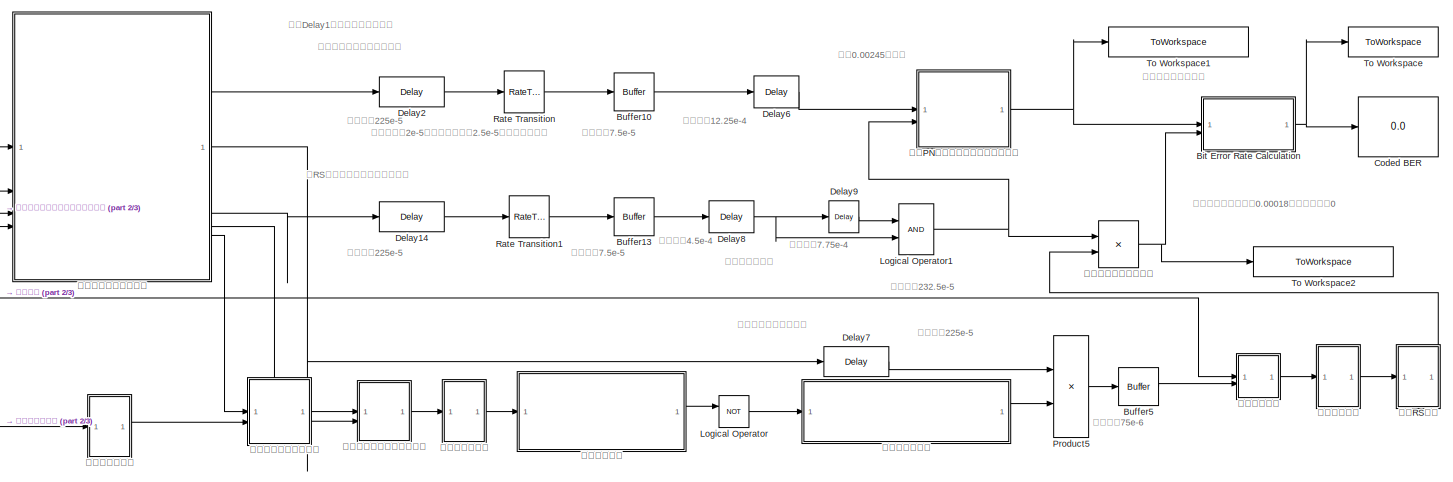
[diagram: root canvas - part 1/3, most of the canvas]
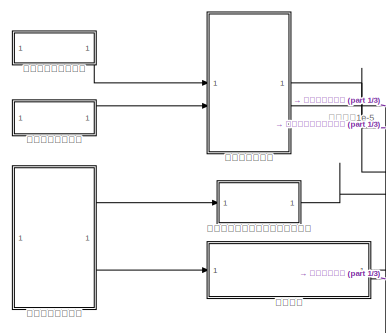
[diagram: root canvas - part 2/3, middle left region]
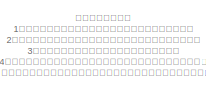
[diagram: root canvas - part 3/3, bottom left region]
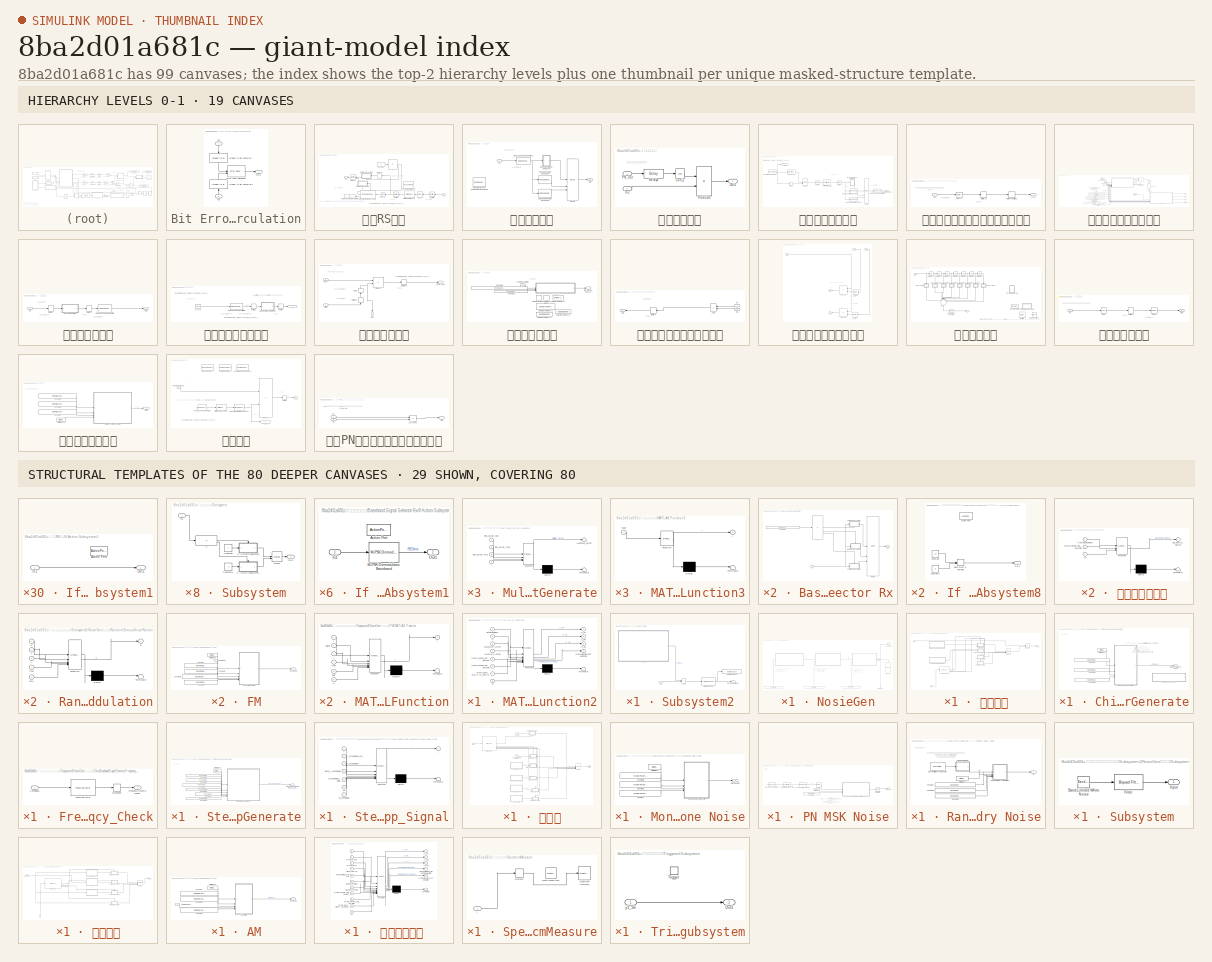
[diagram: thumbnail index - top-2 hierarchy levels (19 canvases) + 29 structural-template representatives of the remaining 80 canvases]
MODEL slx_8ba2d01a681c
KIND model
CONFIG AbsTol = auto
CONFIG EnableMultiTasking = off
CONFIG FixedStep = auto
CONFIG InitFcn = Parameter_Initialize_6
CONFIG MaxStep = auto
CONFIG MinStep = auto
CONFIG RelTol = 1e-3
CONFIG SampleTimeConstraint = Unconstrained
CONFIG SolverName = VariableStepAuto
CONFIG StartTime = 0.0
CONFIG StopTime = 0.03
BLOCK [SubSystem] Bit Error Rate Calculation
BLOCK [Reference] Bit Error Rate Calculation/Error Rate Calculation  REF=commsink2/Error Rate
Calculation
  SourceBlock = commsink2/Error Rate\nCalculation
  SourceType = Error Rate Calculation
BLOCK [Inport] Bit Error Rate Calculation/In1
  NameLocation = right
BLOCK [Inport] Bit Error Rate Calculation/In2
  NameLocation = right
  Port = 2
BLOCK [Reference] Bit Error Rate Calculation/Integer to Bit Converter  REF=simulink/Logic and Bit
Operations/Integer to Bit
Converter
  LibrarySourceBlock = commutil2/Integer to Bit\nConverter
  NameLocation = right
  SourceBlock = simulink/Logic and Bit\nOperations/Integer to Bit\nConverter
  SourceType = Integer to Bit Converter
BLOCK [Reference] Bit Error Rate Calculation/Integer to Bit Converter1  REF=simulink/Logic and Bit
Operations/Integer to Bit
Converter
  LibrarySourceBlock = commutil2/Integer to Bit\nConverter
  NameLocation = right
  SourceBlock = simulink/Logic and Bit\nOperations/Integer to Bit\nConverter
  SourceType = Integer to Bit Converter
BLOCK [Outport] Bit Error Rate Calculation/Out1
  VectorParamsAs1DForOutWhenUnconnected = off
BLOCK [Buffer] Buffer10
  N = model.parameter.Buffer10.Output_buffer_size
  OutputFrames = off
BLOCK [Buffer] Buffer13
  N = model.parameter.Buffer13.Output_buffer_size
  OutputFrames = off
BLOCK [Buffer] Buffer5
  N = model.parameter.Beffer5.Output_buffer_size
  OutputFrames = off
BLOCK [Display] Coded BER
  Decimation = 1
BLOCK [Reference] Delay14  REF=dspobslib/Delay
  SourceBlock = dspobslib/Delay
  SourceType = Delay
  UserDataPersistent = on
BLOCK [Reference] Delay2  REF=dspobslib/Delay
  SourceBlock = dspobslib/Delay
  SourceType = Delay
  UserDataPersistent = on
BLOCK [Reference] Delay6  REF=dspobslib/Delay
  SourceBlock = dspobslib/Delay
  SourceType = Delay
  UserDataPersistent = on
BLOCK [Reference] Delay7  REF=dspobslib/Delay
  SourceBlock = dspobslib/Delay
  SourceType = Delay
  UserDataPersistent = on
BLOCK [Reference] Delay8  REF=dspobslib/Delay
  SourceBlock = dspobslib/Delay
  SourceType = Delay
  UserDataPersistent = on
BLOCK [Reference] Delay9  REF=dspobslib/Delay
  SourceBlock = dspobslib/Delay
  SourceType = Delay
  UserDataPersistent = on
BLOCK [Logic] Logical Operator
  AllPortsSameDT = off
  Operator = NOT
  OutDataTypeStr = boolean
BLOCK [Logic] Logical Operator1
  AllPortsSameDT = off
  OutDataTypeStr = boolean
BLOCK [Product] Product5
BLOCK [RateTransition] Rate Transition
  OutPortSampleTime = model.parameter.Rate_Transition.Ts
BLOCK [RateTransition] Rate Transition1
  OutPortSampleTime = model.parameter.Rate_Transition1.Ts
BLOCK [ToWorkspace] To Workspace
  FixptAsFi = on
  MaxDataPoints = inf
  SampleTime = -1
  SaveFormat = Timeseries
  VariableName = CodeBER
BLOCK [ToWorkspace] To Workspace1
  FixptAsFi = on
  MaxDataPoints = inf
  SampleTime = -1
  SaveFormat = Timeseries
  VariableName = SendingCodeWave
BLOCK [ToWorkspace] To Workspace2
  FixptAsFi = on
  MaxDataPoints = inf
  SampleTime = -1
  SaveFormat = Timeseries
  VariableName = ReceivingCodeWave
BLOCK [SubSystem] 信源RS解码
BLOCK [Buffer] 信源RS解码/Buffer5
  N = model.parameter.Buffer5.Output_buffer_size
  NameLocation = top
  OutputFrames = off
BLOCK [Buffer] 信源RS解码/Buffer8
  N = model.parameter.Buffer8.Output_buffer_size
  NameLocation = top
  OutputFrames = off
BLOCK [Constant] 信源RS解码/Constant
BLOCK [Reference] 信源RS解码/Delay10  REF=dspobslib/Delay
  NameLocation = top
  SourceBlock = dspobslib/Delay
  SourceType = Delay
  UserDataPersistent = on
BLOCK [Reference] 信源RS解码/Delay4  REF=dspobslib/Delay
  NameLocation = top
  SourceBlock = dspobslib/Delay
  SourceType = Delay
  UserDataPersistent = on
BLOCK [Delay] 信源RS解码/Delay5
  Commented = on
  DelayLength = 0
  InitialCondition = 0
  InputPortMap = u0
  InputProcessing = Columns as channels (frame based)
  NameLocation = top
BLOCK [If] 信源RS解码/If
  IfExpression = u1 == 1
BLOCK [SubSystem] 信源RS解码/If Action Subsystem1
  NameLocation = top
  TreatAsAtomicUnit = on
BLOCK [ActionPort] 信源RS解码/If Action Subsystem1/Action Port
  ActionPortLabel = if(u1 == 1)
BLOCK [Inport] 信源RS解码/If Action Subsystem1/In1
BLOCK [Outport] 信源RS解码/If Action Subsystem1/Out1
BLOCK [SubSystem] 信源RS解码/If Action Subsystem4
  NameLocation = top
  TreatAsAtomicUnit = on
BLOCK [ActionPort] 信源RS解码/If Action Subsystem4/Action Port
  ActionPortLabel = else
BLOCK [Inport] 信源RS解码/If Action Subsystem4/In1
BLOCK [Outport] 信源RS解码/If Action Subsystem4/Out1
BLOCK [Inport] 信源RS解码/In1
  NameLocation = top
BLOCK [Reference] 信源RS解码/Integer-Output RS Decoder1  REF=commblkcod2/Integer-Output
RS Decoder
  NameLocation = top
  SourceBlock = commblkcod2/Integer-Output\nRS Decoder
  SourceType = Integer-Output RS Decoder
BLOCK [Reference] 信源RS解码/Matrix Deinterleaver  REF=commblkintrlv2/Matrix
Deinterleaver
  NameLocation = top
  SourceBlock = commblkintrlv2/Matrix\nDeinterleaver
  SourceType = Matrix Deinterleaver
  StatePerturbationForJacobian = 1.0e-05
BLOCK [Merge] 信源RS解码/Merge2
  NameLocation = top
BLOCK [Outport] 信源RS解码/Out1
BLOCK [Reference] 信源RS解码/Random Deinterleaver  REF=commblkintrlv2/Random
Deinterleaver
  Commented = on
  NameLocation = top
  SourceBlock = commblkintrlv2/Random\nDeinterleaver
  SourceType = Random Deinterleaver
  StatePerturbationForJacobian = 1.0e-05
BLOCK [Display] 信源RS解码/Total Number of Corrected Errors
  Decimation = 1
BLOCK [SubSystem] 信源基带解调
BLOCK [SubSystem] 信源基带解调/Baseband Signal Selector Rx
BLOCK [Constant] 信源基带解调/Baseband Signal Selector Rx/Constant
  Value = model.user_defined.TR.Baseband_Modulation_type
BLOCK [If] 信源基带解调/Baseband Signal Selector Rx/If
  ElseIfExpressions = u1 == 2
  IfExpression = u1 == 1
BLOCK [SubSystem] 信源基带解调/Baseband Signal Selector Rx/If Action Subsystem1
  TreatAsAtomicUnit = on
BLOCK [ActionPort] 信源基带解调/Baseband Signal Selector Rx/If Action Subsystem1/Action Port
  ActionPortLabel = elseif(u1 == 2)
BLOCK [Inport] 信源基带解调/Baseband Signal Selector Rx/If Action Subsystem1/In1
BLOCK [Reference] 信源基带解调/Baseband Signal Selector Rx/If Action Subsystem1/M-PSK Demodulator Baseband  REF=commdigbbndpm3/M-PSK
Demodulator
Baseband
  SourceBlock = commdigbbndpm3/M-PSK\nDemodulator\nBaseband
  SourceType = M-PSK Demodulator Baseband
BLOCK [Outport] 信源基带解调/Baseband Signal Selector Rx/If Action Subsystem1/Out1
BLOCK [SubSystem] 信源基带解调/Baseband Signal Selector Rx/If Action Subsystem4
  TreatAsAtomicUnit = on
BLOCK [ActionPort] 信源基带解调/Baseband Signal Selector Rx/If Action Subsystem4/Action Port
  ActionPortLabel = if(u1 == 1)
BLOCK [Inport] 信源基带解调/Baseband Signal Selector Rx/If Action Subsystem4/In1
BLOCK [Outport] 信源基带解调/Baseband Signal Selector Rx/If Action Subsystem4/Out1
BLOCK [Reference] 信源基带解调/Baseband Signal Selector Rx/If Action Subsystem4/Rectangular QAM Demodulator Baseband  REF=commdigbbndam3/Rectangular QAM
Demodulator
Baseband
  SourceBlock = commdigbbndam3/Rectangular QAM\nDemodulator\nBaseband
  SourceType = Rectangular QAM Demodulator Baseband
BLOCK [SubSystem] 信源基带解调/Baseband Signal Selector Rx/If Action Subsystem5
  TreatAsAtomicUnit = on
BLOCK [ActionPort] 信源基带解调/Baseband Signal Selector Rx/If Action Subsystem5/Action Port
  ActionPortLabel = else
BLOCK [Inport] 信源基带解调/Baseband Signal Selector Rx/If Action Subsystem5/In1
BLOCK [Outport] 信源基带解调/Baseband Signal Selector Rx/If Action Subsystem5/Out1
BLOCK [Reference] 信源基带解调/Baseband Signal Selector Rx/If Action Subsystem5/Rectangular QAM Demodulator Baseband  REF=commdigbbndam3/Rectangular QAM
Demodulator
Baseband
  SourceBlock = commdigbbndam3/Rectangular QAM\nDemodulator\nBaseband
  SourceType = Rectangular QAM Demodulator Baseband
BLOCK [Inport] 信源基带解调/Baseband Signal Selector Rx/In1
BLOCK [Merge] 信源基带解调/Baseband Signal Selector Rx/Merge
  Inputs = 3
BLOCK [Outport] 信源基带解调/Baseband Signal Selector Rx/Out1
BLOCK [Inport] 信源基带解调/In1
BLOCK [Merge] 信源基带解调/Merge
  Inputs = 3
BLOCK [Reference] 信源基带解调/OQPSK Demodulator Baseband  REF=commdigbbndpm3/OQPSK
Demodulator
Baseband
  Commented = on
  SourceBlock = commdigbbndpm3/OQPSK\nDemodulator\nBaseband
  SourceType = OQPSK Demodulator Baseband
  UserDataPersistent = on
BLOCK [Outport] 信源基带解调/Out1
  NameLocation = top
BLOCK [Reference] 信源基带解调/QPSK Demodulator Baseband  REF=commdigbbndpm3/QPSK
Demodulator
Baseband
  Commented = on
  SourceBlock = commdigbbndpm3/QPSK\nDemodulator\nBaseband
  SourceType = QPSK Demodulator Baseband
BLOCK [Reference] 信源基带解调/Raised Cosine Receive Filter1  REF=commfilt2/Raised Cosine
Receive Filter
  SourceBlock = commfilt2/Raised Cosine\nReceive Filter
  SourceType = Raised Cosine Receive Filter
BLOCK [Reference] 信源基带解调/Rectangular QAM Demodulator Baseband  REF=commdigbbndam3/Rectangular QAM
Demodulator
Baseband
  Commented = on
  SourceBlock = commdigbbndam3/Rectangular QAM\nDemodulator\nBaseband
  SourceType = Rectangular QAM Demodulator Baseband
BLOCK [SubSystem] 信源相干解调
BLOCK [Math] 信源相干解调/Conj1
  Operator = conj
BLOCK [Reference] 信源相干解调/Delay3  REF=dspobslib/Delay
  SourceBlock = dspobslib/Delay
  SourceType = Delay
  UserDataPersistent = on
BLOCK [Inport] 信源相干解调/In2
  Port = 2
BLOCK [Outport] 信源相干解调/Out1
BLOCK [Inport] 信源相干解调/PN_Out
BLOCK [Product] 信源相干解调/Product3
BLOCK [SubSystem] 信源部分基带调制
BLOCK [SubSystem] 信源部分基带调制/Baseband Signal Selector Tx
BLOCK [Constant] 信源部分基带调制/Baseband Signal Selector Tx/Constant
  Value = model.user_defined.TR.Baseband_Modulation_type
BLOCK [If] 信源部分基带调制/Baseband Signal Selector Tx/If
  ElseIfExpressions = u1 == 2
  IfExpression = u1 == 1
BLOCK [SubSystem] 信源部分基带调制/Baseband Signal Selector Tx/If Action Subsystem1
  TreatAsAtomicUnit = on
BLOCK [ActionPort] 信源部分基带调制/Baseband Signal Selector Tx/If Action Subsystem1/Action Port
  ActionPortLabel = elseif(u1 == 2)
BLOCK [Inport] 信源部分基带调制/Baseband Signal Selector Tx/If Action Subsystem1/In1
BLOCK [Reference] 信源部分基带调制/Baseband Signal Selector Tx/If Action Subsystem1/M-PSK Modulator Baseband  REF=commdigbbndpm3/M-PSK
Modulator
Baseband
  SourceBlock = commdigbbndpm3/M-PSK\nModulator\nBaseband
  SourceType = M-PSK Modulator Baseband
BLOCK [Outport] 信源部分基带调制/Baseband Signal Selector Tx/If Action Subsystem1/Out1
BLOCK [SubSystem] 信源部分基带调制/Baseband Signal Selector Tx/If Action Subsystem4
  TreatAsAtomicUnit = on
BLOCK [ActionPort] 信源部分基带调制/Baseband Signal Selector Tx/If Action Subsystem4/Action Port
  ActionPortLabel = if(u1 == 1)
BLOCK [Inport] 信源部分基带调制/Baseband Signal Selector Tx/If Action Subsystem4/In1
BLOCK [Outport] 信源部分基带调制/Baseband Signal Selector Tx/If Action Subsystem4/Out1
BLOCK [Reference] 信源部分基带调制/Baseband Signal Selector Tx/If Action Subsystem4/Rectangular QAM Modulator Baseband  REF=commdigbbndam3/Rectangular QAM
Modulator
Baseband
  LibrarySourceBlock = commhdldigbbndam/Rectangular QAM\nModulator\nBaseband
  SourceBlock = commdigbbndam3/Rectangular QAM\nModulator\nBaseband
  SourceType = Rectangular QAM Modulator Baseband
BLOCK [SubSystem] 信源部分基带调制/Baseband Signal Selector Tx/If Action Subsystem5
  TreatAsAtomicUnit = on
BLOCK [ActionPort] 信源部分基带调制/Baseband Signal Selector Tx/If Action Subsystem5/Action Port
  ActionPortLabel = else
BLOCK [Inport] 信源部分基带调制/Baseband Signal Selector Tx/If Action Subsystem5/In1
BLOCK [Outport] 信源部分基带调制/Baseband Signal Selector Tx/If Action Subsystem5/Out1
BLOCK [Reference] 信源部分基带调制/Baseband Signal Selector Tx/If Action Subsystem5/Rectangular QAM Modulator Baseband1  REF=commdigbbndam3/Rectangular QAM
Modulator
Baseband
  LibrarySourceBlock = commhdldigbbndam/Rectangular QAM\nModulator\nBaseband
  SourceBlock = commdigbbndam3/Rectangular QAM\nModulator\nBaseband
  SourceType = Rectangular QAM Modulator Baseband
BLOCK [Inport] 信源部分基带调制/Baseband Signal Selector Tx/In1
BLOCK [Merge] 信源部分基带调制/Baseband Signal Selector Tx/Merge
  Inputs = 3
BLOCK [Outport] 信源部分基带调制/Baseband Signal Selector Tx/Out1
BLOCK [Buffer] 信源部分基带调制/Buffer30
  N = model.parameter.Buffer30.Output_buffer_size
  OutputFrames = off
BLOCK [Buffer] 信源部分基带调制/Buffer40
  N = model.parameter.Buffer40.Output_buffer_size
  OutputFrames = off
BLOCK [Delay] 信源部分基带调制/Delay6
  Commented = on
  DelayLength = 0
  InitialCondition = 0
  InputPortMap = u0
BLOCK [Reference] 信源部分基带调制/Matrix Interleaver  REF=commblkintrlv2/Matrix
Interleaver
  SourceBlock = commblkintrlv2/Matrix\nInterleaver
  SourceType = Matrix Interleaver
  StatePerturbationForJacobian = 1.0e-05
BLOCK [Merge] 信源部分基带调制/Merge
  Inputs = 3
BLOCK [Merge] 信源部分基带调制/Merge3
BLOCK [Outport] 信源部分基带调制/Modulated Signal
  Port = 2
BLOCK [Reference] 信源部分基带调制/OQPSK Modulator Baseband  REF=commdigbbndpm3/OQPSK
Modulator
Baseband
  Commented = on
  SourceBlock = commdigbbndpm3/OQPSK\nModulator\nBaseband
  SourceType = OQPSK Modulator Baseband
  UserDataPersistent = on
BLOCK [Outport] 信源部分基带调制/Out1
  IconDisplay = Signal name
BLOCK [Reference] 信源部分基带调制/QPSK Modulator Baseband  REF=commdigbbndpm3/QPSK
Modulator
Baseband
  Commented = on
  SourceBlock = commdigbbndpm3/QPSK\nModulator\nBaseband
  SourceType = QPSK Modulator Baseband
BLOCK [Reference] 信源部分基带调制/RS Encoder  REF=commblkcod2/Integer-Input
RS Encoder
  SourceBlock = commblkcod2/Integer-Input\nRS Encoder
  SourceType = Integer-Input RS Encoder
BLOCK [Reference] 信源部分基带调制/Raised Cosine Transmit Filter1  REF=commfilt2/Raised Cosine
Transmit Filter
  SourceBlock = commfilt2/Raised Cosine\nTransmit Filter
  SourceType = Raised Cosine Transmit Filter
BLOCK [Reference] 信源部分基带调制/Random Integer Generator  REF=commrandsrc3/Random Integer
Generator
  SourceBlock = commrandsrc3/Random Integer\nGenerator
  SourceType = Random Integer Generator
BLOCK [SubSystem] 信源随机码混合相加前的延时同步
BLOCK [Buffer] 信源随机码混合相加前的延时同步/Buffer14
  N = model.parameter.Buffer14.Output_buffer_size
  OutputFrames = off
BLOCK [Reference] 信源随机码混合相加前的延时同步/Delay11  REF=dspobslib/Delay
  SourceBlock = dspobslib/Delay
  SourceType = Delay
  UserDataPersistent = on
BLOCK [Inport] 信源随机码混合相加前的延时同步/In1
BLOCK [RateTransition] 信源随机码混合相加前的延时同步/Rate Transition2
  OutPortSampleTime = model.Intermediate_variable.system_frame_speed_3
BLOCK [Outport] 信源随机码混合相加前的延时同步/随机码信号
BLOCK [SubSystem] 帧信号和信源信号混合
BLOCK [Constant] 帧信号和信源信号混合/Constant
  Value = model.parameter.Transmit_timing_control.Waveform_Offset
BLOCK [Constant] 帧信号和信源信号混合/Constant1
  Value = model.parameter.Transmit_timing_control.Waveform_Period
BLOCK [Constant] 帧信号和信源信号混合/Constant2
  Value = model.parameter.Transmit_timing_control.Frame_Period_Unit_Number
BLOCK [Constant] 帧信号和信源信号混合/Constant3
  Value = model.parameter.Transmit_timing_control.Frame_Period_Unit_Duration
BLOCK [Constant] 帧信号和信源信号混合/Constant4
  Value = model.parameter.Transmit_timing_control.Frame_Back_StartPoint_Offset_Control
BLOCK [Constant] 帧信号和信源信号混合/Constant5
  Value = model.parameter.Transmit_timing_control.Ts
BLOCK [DataStoreMemory] 帧信号和信源信号混合/Data Store Memory
  DataStoreName = Waveform_Generation_Flag_Transmit
  OutDataTypeStr = int8
  ShowAdditionalParam = off
  SignalType = real
  WriteAfterWriteMsg = warning
BLOCK [DataStoreMemory] 帧信号和信源信号混合/Data Store Memory1
  DataStoreName = Waveform_Generation_Flag_Receive
  OutDataTypeStr = int8
  ShowAdditionalParam = off
  SignalType = real
  WriteAfterWriteMsg = warning
BLOCK [DigitalClock] 帧信号和信源信号混合/Digital Clock3
  SampleTime = model.parameter.Digital_Clock4.Ts
BLOCK [DigitalClock] 帧信号和信源信号混合/Digital Clock4
  SampleTime = model.parameter.Digital_Clock4.Ts
BLOCK [Inport] 帧信号和信源信号混合/Frame_Back
  Port = 2
BLOCK [Inport] 帧信号和信源信号混合/Frame_Front
BLOCK [Gain] 帧信号和信源信号混合/Gain
  Gain = model.user_defined.TR.Sig_power_controller_coeffience
  NameLocation = left
BLOCK [Gain] 帧信号和信源信号混合/Gain1
  Gain = 1/model.user_defined.TR.Sig_power_controller_coeffience
  NameLocation = left
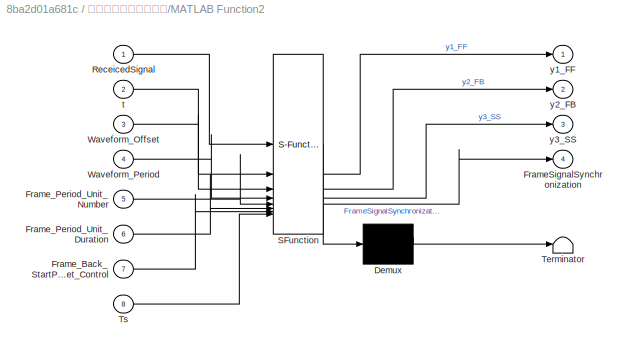
BLOCK [SubSystem] 帧信号和信源信号混合/MATLAB Function2
  ErrorFcn = Stateflow.Translate.translate
  LibrarySourceBlock = simulink/User-Defined\nFunctions/MATLAB Function
  NameLocation = top
  PermitHierarchicalResolution = ExplicitOnly
  SFBlockType = MATLAB Function
  TreatAsAtomicUnit = on
BLOCK [Demux] 帧信号和信源信号混合/MATLAB Function2/ Demux 
  Outputs = 1
BLOCK [S-Function] 帧信号和信源信号混合/MATLAB Function2/ SFunction 
  EnableBusSupport = on
  FunctionName = sf_sfun
  PortCounts = [8 5]
  SFcnIsStateOwnerBlock = off
  SFunctionDeploymentMode = off
  Tag = Stateflow S-Function 3
BLOCK [Terminator] 帧信号和信源信号混合/MATLAB Function2/ Terminator 
BLOCK [Outport] 帧信号和信源信号混合/MATLAB Function2/FrameSignalSynchronization
  Port = 4
BLOCK [Inport] 帧信号和信源信号混合/MATLAB Function2/Frame_Back_StartPoint_Offset_Control
  Port = 7
BLOCK [Inport] 帧信号和信源信号混合/MATLAB Function2/Frame_Period_Unit_Duration
  Port = 6
BLOCK [Inport] 帧信号和信源信号混合/MATLAB Function2/Frame_Period_Unit_Number
  Port = 5
BLOCK [Inport] 帧信号和信源信号混合/MATLAB Function2/ReceicedSignal
BLOCK [Inport] 帧信号和信源信号混合/MATLAB Function2/Ts
  Port = 8
BLOCK [Inport] 帧信号和信源信号混合/MATLAB Function2/Waveform_Offset
  Port = 3
BLOCK [Inport] 帧信号和信源信号混合/MATLAB Function2/Waveform_Period
  Port = 4
BLOCK [Inport] 帧信号和信源信号混合/MATLAB Function2/t
  Port = 2
BLOCK [Outport] 帧信号和信源信号混合/MATLAB Function2/y1_FF
BLOCK [Outport] 帧信号和信源信号混合/MATLAB Function2/y2_FB
  Port = 2
BLOCK [Outport] 帧信号和信源信号混合/MATLAB Function2/y3_SS
  Port = 3
BLOCK [Outport] 帧信号和信源信号混合/RandomIntegerSignalTimeSelectivity
  NameLocation = top
  Port = 2
BLOCK [SubSystem] 帧信号和信源信号混合/Subsystem2
BLOCK [Reference] 帧信号和信源信号混合/Subsystem2/AWGN Channel  REF=commchan3/AWGN
Channel
  SourceBlock = commchan3/AWGN\nChannel
  SourceType = AWGN Channel
  UserDataPersistent = on
BLOCK [Sum] 帧信号和信源信号混合/Subsystem2/Add
  IconShape = rectangular
BLOCK [Inport] 帧信号和信源信号混合/Subsystem2/In1
BLOCK [SubSystem] 帧信号和信源信号混合/Subsystem2/NosieGen
BLOCK [Gain] 帧信号和信源信号混合/Subsystem2/NosieGen/Gain
  Gain = model.Parameters.jammer_power_controller
BLOCK [Outport] 帧信号和信源信号混合/Subsystem2/NosieGen/Jamming_Signal_Output
  NameLocation = top
BLOCK [SpectrumAnalyzer] 帧信号和信源信号混合/Subsystem2/NosieGen/Spectrum Analyzer
  Commented = on
  NameLocation = right
  ScopeSpecificationString = spbscopes.SpectrumAnalyzerBlockCfg('CurrentConfiguration', extmgr.ConfigurationSet(extmgr.Configuration('Core','General UI',true),extmgr.Configuration('Core','Source UI',true),extmgr.Configuration('Sources','WiredSimulink',true),extmgr.Configuration('Visuals','Spectrum',true,'AxesProperties',struct('Color',{[0 0 0],[0 0 0]},'XColor',{[0.686274509803922 0.686274509803922 0.686274509803922],[0.68627...<+1973ch>
BLOCK [ToWorkspace] 帧信号和信源信号混合/Subsystem2/NosieGen/To Workspace
  FixptAsFi = on
  MaxDataPoints = inf
  NameLocation = left
  SampleTime = -1
  SaveFormat = Timeseries
  VariableName = Noise
BLOCK [SubSystem] 帧信号和信源信号混合/Subsystem2/NosieGen/干扰方式
BLOCK [SubSystem] 帧信号和信源信号混合/Subsystem2/NosieGen/干扰方式/ChirpBasebandSignalGenerate
  AttributesFormatString = 线性调频模块：线性调频公式(y=exp(2*pi*(f_min*t+0.5*k_chirp*t^2)))\n输入参数：\n1. f_min,为线性调频信号的起始频率\n2.f_max为线性调频信号的终止频率\n3.T_chirp为线性调频信号的调频时间\n斜率k_sweep = (f_min-f_max)/T_chirp
BLOCK [Outport] 帧信号和信源信号混合/Subsystem2/NosieGen/干扰方式/ChirpBasebandSignalGenerate/ChirpSignalOfBaseband
BLOCK [SubSystem] 帧信号和信源信号混合/Subsystem2/NosieGen/干扰方式/ChirpBasebandSignalGenerate/Chirp_Signal_Generation
  ErrorFcn = Stateflow.Translate.translate
  LibrarySourceBlock = simulink/User-Defined\nFunctions/MATLAB Function
  PermitHierarchicalResolution = ExplicitOnly
  SFBlockType = MATLAB Function
  TreatAsAtomicUnit = on
BLOCK [Demux] 帧信号和信源信号混合/Subsystem2/NosieGen/干扰方式/ChirpBasebandSignalGenerate/Chirp_Signal_Generation/ Demux 
  Outputs = 1
BLOCK [S-Function] 帧信号和信源信号混合/Subsystem2/NosieGen/干扰方式/ChirpBasebandSignalGenerate/Chirp_Signal_Generation/ SFunction 
  EnableBusSupport = on
  FunctionName = sf_sfun
  PortCounts = [4 2]
  SFcnIsStateOwnerBlock = off
  SFunctionDeploymentMode = off
  Tag = Stateflow S-Function 25
BLOCK [Terminator] 帧信号和信源信号混合/Subsystem2/NosieGen/干扰方式/ChirpBasebandSignalGenerate/Chirp_Signal_Generation/ Terminator 
BLOCK [Inport] 帧信号和信源信号混合/Subsystem2/NosieGen/干扰方式/ChirpBasebandSignalGenerate/Chirp_Signal_Generation/T_chirp
  Port = 3
BLOCK [Inport] 帧信号和信源信号混合/Subsystem2/NosieGen/干扰方式/ChirpBasebandSignalGenerate/Chirp_Signal_Generation/f_chirp_min
  Port = 2
BLOCK [Inport] 帧信号和信源信号混合/Subsystem2/NosieGen/干扰方式/ChirpBasebandSignalGenerate/Chirp_Signal_Generation/k_chirp
  Port = 4
BLOCK [Inport] 帧信号和信源信号混合/Subsystem2/NosieGen/干扰方式/ChirpBasebandSignalGenerate/Chirp_Signal_Generation/t
BLOCK [Outport] 帧信号和信源信号混合/Subsystem2/NosieGen/干扰方式/ChirpBasebandSignalGenerate/Chirp_Signal_Generation/y
BLOCK [Constant] 帧信号和信源信号混合/Subsystem2/NosieGen/干扰方式/ChirpBasebandSignalGenerate/Constant
  Value = model.Parameters.NoiseGen.Jamming.LinearSweepFmin
BLOCK [Constant] 帧信号和信源信号混合/Subsystem2/NosieGen/干扰方式/ChirpBasebandSignalGenerate/Constant1
  Value = model.Parameters.NoiseGen.Jamming.LinearSweepT
BLOCK [Constant] 帧信号和信源信号混合/Subsystem2/NosieGen/干扰方式/ChirpBasebandSignalGenerate/Constant2
  Value = model.Parameters.NoiseGen.Jamming.LinearSweepK
BLOCK [DigitalClock] 帧信号和信源信号混合/Subsystem2/NosieGen/干扰方式/ChirpBasebandSignalGenerate/Digital Clock
  SampleTime = model.Parameters.NoiseGen.NoiseTs
BLOCK [SubSystem] 帧信号和信源信号混合/Subsystem2/NosieGen/干扰方式/ChirpBasebandSignalGenerate/Frequency_Check
  Commented = on
BLOCK [Inport] 帧信号和信源信号混合/Subsystem2/NosieGen/干扰方式/ChirpBasebandSignalGenerate/Frequency_Check/ChirpSignal
BLOCK [Derivative] 帧信号和信源信号混合/Subsystem2/NosieGen/干扰方式/ChirpBasebandSignalGenerate/Frequency_Check/Derivative
BLOCK [Outport] 帧信号和信源信号混合/Subsystem2/NosieGen/干扰方式/ChirpBasebandSignalGenerate/Frequency_Check/FrequencyConversionLine
BLOCK [Reference] 帧信号和信源信号混合/Subsystem2/NosieGen/干扰方式/ChirpBasebandSignalGenerate/Frequency_Check/Phase Extractor  REF=dspsigops/Phase Extractor
  SourceBlock = dspsigops/Phase Extractor
  SourceType = dsp.simulink.PhaseExtractor
BLOCK [SubSystem] 帧信号和信源信号混合/Subsystem2/NosieGen/干扰方式/If Action Subsystem7
  TreatAsAtomicUnit = on
BLOCK [ActionPort] 帧信号和信源信号混合/Subsystem2/NosieGen/干扰方式/If Action Subsystem7/Action Port
  ActionPortLabel = case [ 2 ]:
BLOCK [Outport] 帧信号和信源信号混合/Subsystem2/NosieGen/干扰方式/If Action Subsystem7/Out1
BLOCK [Inport] 帧信号和信源信号混合/Subsystem2/NosieGen/干扰方式/If Action Subsystem7/StepSweepSignal
BLOCK [SubSystem] 帧信号和信源信号混合/Subsystem2/NosieGen/干扰方式/If Action Subsystem8
  TreatAsAtomicUnit = on
BLOCK [ActionPort] 帧信号和信源信号混合/Subsystem2/NosieGen/干扰方式/If Action Subsystem8/Action Port
  ActionPortLabel = case [ 3 ]:
BLOCK [Constant] 帧信号和信源信号混合/Subsystem2/NosieGen/干扰方式/If Action Subsystem8/Constant
  Value = 10
BLOCK [Constant] 帧信号和信源信号混合/Subsystem2/NosieGen/干扰方式/If Action Subsystem8/Constant1
  Value = 0
BLOCK [Outport] 帧信号和信源信号混合/Subsystem2/NosieGen/干扰方式/If Action Subsystem8/Out1
BLOCK [RealImagToComplex] 帧信号和信源信号混合/Subsystem2/NosieGen/干扰方式/If Action Subsystem8/Real-Imag to Complex
BLOCK [SubSystem] 帧信号和信源信号混合/Subsystem2/NosieGen/干扰方式/If Action Subsystem9
  TreatAsAtomicUnit = on
BLOCK [ActionPort] 帧信号和信源信号混合/Subsystem2/NosieGen/干扰方式/If Action Subsystem9/Action Port
  ActionPortLabel = default:
BLOCK [Constant] 帧信号和信源信号混合/Subsystem2/NosieGen/干扰方式/If Action Subsystem9/Constant
BLOCK [Constant] 帧信号和信源信号混合/Subsystem2/NosieGen/干扰方式/If Action Subsystem9/Constant1
  Value = 0
BLOCK [Outport] 帧信号和信源信号混合/Subsystem2/NosieGen/干扰方式/If Action Subsystem9/Out1
BLOCK [RealImagToComplex] 帧信号和信源信号混合/Subsystem2/NosieGen/干扰方式/If Action Subsystem9/Real-Imag to Complex
BLOCK [Inport] 帧信号和信源信号混合/Subsystem2/NosieGen/干扰方式/In1
BLOCK [Inport] 帧信号和信源信号混合/Subsystem2/NosieGen/干扰方式/In2
  Port = 2
BLOCK [Merge] 帧信号和信源信号混合/Subsystem2/NosieGen/干扰方式/Merge2
  Inputs = 4
BLOCK [Outport] 帧信号和信源信号混合/Subsystem2/NosieGen/干扰方式/Out1
BLOCK [Product] 帧信号和信源信号混合/Subsystem2/NosieGen/干扰方式/Product
BLOCK [SubSystem] 帧信号和信源信号混合/Subsystem2/NosieGen/干扰方式/StepSweepSignalGenerate
BLOCK [Constant] 帧信号和信源信号混合/Subsystem2/NosieGen/干扰方式/StepSweepSignalGenerate/Constant
  Value = model.Parameters.NoiseGen.NoiseTs
BLOCK [Constant] 帧信号和信源信号混合/Subsystem2/NosieGen/干扰方式/StepSweepSignalGenerate/Constant1
  Value = model.Parameters.NoiseGen.Jamming.LinearSweepFmin
BLOCK [Constant] 帧信号和信源信号混合/Subsystem2/NosieGen/干扰方式/StepSweepSignalGenerate/Constant2
  Value = model.Parameters.NoiseGen.Jamming.StepSweepT
BLOCK [Constant] 帧信号和信源信号混合/Subsystem2/NosieGen/干扰方式/StepSweepSignalGenerate/Constant3
  Value = model.Parameters.NoiseGen.Jamming.StepSweepDeltaFstep
BLOCK [Constant] 帧信号和信源信号混合/Subsystem2/NosieGen/干扰方式/StepSweepSignalGenerate/Constant4
  Value = model.Parameters.NoiseGen.Jamming.StepSweepTDwell
BLOCK [Constant] 帧信号和信源信号混合/Subsystem2/NosieGen/干扰方式/StepSweepSignalGenerate/Constant5
  Value = model.Parameters.NoiseGen.Jamming.StepSweepN
BLOCK [DigitalClock] 帧信号和信源信号混合/Subsystem2/NosieGen/干扰方式/StepSweepSignalGenerate/Digital Clock
  SampleTime = model.Parameters.NoiseGen.NoiseTs
BLOCK [Outport] 帧信号和信源信号混合/Subsystem2/NosieGen/干扰方式/StepSweepSignalGenerate/StepSweepSignalOfBaseband
BLOCK [SubSystem] 帧信号和信源信号混合/Subsystem2/NosieGen/干扰方式/StepSweepSignalGenerate/StepSweep_Signal
  ErrorFcn = Stateflow.Translate.translate
  LibrarySourceBlock = simulink/User-Defined\nFunctions/MATLAB Function
  PermitHierarchicalResolution = ExplicitOnly
  SFBlockType = MATLAB Function
  TreatAsAtomicUnit = on
BLOCK [Demux] 帧信号和信源信号混合/Subsystem2/NosieGen/干扰方式/StepSweepSignalGenerate/StepSweep_Signal/ Demux 
  Outputs = 1
BLOCK [S-Function] 帧信号和信源信号混合/Subsystem2/NosieGen/干扰方式/StepSweepSignalGenerate/StepSweep_Signal/ SFunction 
  EnableBusSupport = on
  FunctionName = sf_sfun
  PortCounts = [7 2]
  SFcnIsStateOwnerBlock = off
  SFunctionDeploymentMode = off
  Tag = Stateflow S-Function 26
BLOCK [Terminator] 帧信号和信源信号混合/Subsystem2/NosieGen/干扰方式/StepSweepSignalGenerate/StepSweep_Signal/ Terminator 
BLOCK [Inport] 帧信号和信源信号混合/Subsystem2/NosieGen/干扰方式/StepSweepSignalGenerate/StepSweep_Signal/N_stepSweep
  Port = 7
BLOCK [Inport] 帧信号和信源信号混合/Subsystem2/NosieGen/干扰方式/StepSweepSignalGenerate/StepSweep_Signal/T_stepSweep
  Port = 3
BLOCK [Inport] 帧信号和信源信号混合/Subsystem2/NosieGen/干扰方式/StepSweepSignalGenerate/StepSweep_Signal/T_stepSweep_dwell
  Port = 5
BLOCK [Inport] 帧信号和信源信号混合/Subsystem2/NosieGen/干扰方式/StepSweepSignalGenerate/StepSweep_Signal/Ts
  Port = 6
BLOCK [Inport] 帧信号和信源信号混合/Subsystem2/NosieGen/干扰方式/StepSweepSignalGenerate/StepSweep_Signal/delta_f_stepSweep
  Port = 4
BLOCK [Inport] 帧信号和信源信号混合/Subsystem2/NosieGen/干扰方式/StepSweepSignalGenerate/StepSweep_Signal/f_stepSweep_min
  Port = 2
BLOCK [Inport] 帧信号和信源信号混合/Subsystem2/NosieGen/干扰方式/StepSweepSignalGenerate/StepSweep_Signal/t
BLOCK [Outport] 帧信号和信源信号混合/Subsystem2/NosieGen/干扰方式/StepSweepSignalGenerate/StepSweep_Signal/y
BLOCK [SubSystem] 帧信号和信源信号混合/Subsystem2/NosieGen/干扰方式/Switch Case Action Subsystem
  TreatAsAtomicUnit = on
BLOCK [ActionPort] 帧信号和信源信号混合/Subsystem2/NosieGen/干扰方式/Switch Case Action Subsystem/Action Port
  ActionPortLabel = case [ 1 ]:
BLOCK [Inport] 帧信号和信源信号混合/Subsystem2/NosieGen/干扰方式/Switch Case Action Subsystem/ChirpSignalOfBaseband
BLOCK [Outport] 帧信号和信源信号混合/Subsystem2/NosieGen/干扰方式/Switch Case Action Subsystem/Out1
BLOCK [SwitchCase] 帧信号和信源信号混合/Subsystem2/NosieGen/干扰方式/Switch Case2
  CaseConditions = {1,2,3}
BLOCK [Constant] 帧信号和信源信号混合/Subsystem2/NosieGen/干扰方式控制位
  NameLocation = right
  SampleTime = Inf
  Value = model.Parameters.NoiseGen.Control.Jamming
BLOCK [SubSystem] 帧信号和信源信号混合/Subsystem2/NosieGen/干扰源
BLOCK [Reference] 帧信号和信源信号混合/Subsystem2/NosieGen/干扰源/Band-Limited White Noise  REF=simulink/Sources/Band-Limited
White Noise
  SourceBlock = simulink/Sources/Band-Limited\nWhite Noise
  SourceType = Band-Limited White Noise.
BLOCK [Constant] 帧信号和信源信号混合/Subsystem2/NosieGen/干扰源/Constant
  SampleTime = model.Parameters.NoiseGen.NoiseTs
  Value = 0
BLOCK [SubSystem] 帧信号和信源信号混合/Subsystem2/NosieGen/干扰源/If Action Subsystem
  TreatAsAtomicUnit = on
BLOCK [ActionPort] 帧信号和信源信号混合/Subsystem2/NosieGen/干扰源/If Action Subsystem/Action Port
  ActionPortLabel = case [ 1 ]:
BLOCK [Inport] 帧信号和信源信号混合/Subsystem2/NosieGen/干扰源/If Action Subsystem/In1
BLOCK [Outport] 帧信号和信源信号混合/Subsystem2/NosieGen/干扰源/If Action Subsystem/Out1
BLOCK [SubSystem] 帧信号和信源信号混合/Subsystem2/NosieGen/干扰源/If Action Subsystem1
  TreatAsAtomicUnit = on
BLOCK [ActionPort] 帧信号和信源信号混合/Subsystem2/NosieGen/干扰源/If Action Subsystem1/Action Port
  ActionPortLabel = case [ 2 ]:
BLOCK [Inport] 帧信号和信源信号混合/Subsystem2/NosieGen/干扰源/If Action Subsystem1/Binary_Random_Signal
BLOCK [Outport] 帧信号和信源信号混合/Subsystem2/NosieGen/干扰源/If Action Subsystem1/Out1
BLOCK [SubSystem] 帧信号和信源信号混合/Subsystem2/NosieGen/干扰源/If Action Subsystem2
  TreatAsAtomicUnit = on
BLOCK [ActionPort] 帧信号和信源信号混合/Subsystem2/NosieGen/干扰源/If Action Subsystem2/Action Port
  ActionPortLabel = case [ 3 ]:
BLOCK [Outport] 帧信号和信源信号混合/Subsystem2/NosieGen/干扰源/If Action Subsystem2/Out1
BLOCK [Inport] 帧信号和信源信号混合/Subsystem2/NosieGen/干扰源/If Action Subsystem2/monophonic
BLOCK [SubSystem] 帧信号和信源信号混合/Subsystem2/NosieGen/干扰源/If Action Subsystem3
  TreatAsAtomicUnit = on
BLOCK [ActionPort] 帧信号和信源信号混合/Subsystem2/NosieGen/干扰源/If Action Subsystem3/Action Port
  ActionPortLabel = case [ 4 ]:
BLOCK [Inport] 帧信号和信源信号混合/Subsystem2/NosieGen/干扰源/If Action Subsystem3/Input
BLOCK [Outport] 帧信号和信源信号混合/Subsystem2/NosieGen/干扰源/If Action Subsystem3/Out1
BLOCK [SubSystem] 帧信号和信源信号混合/Subsystem2/NosieGen/干扰源/If Action Subsystem4
  TreatAsAtomicUnit = on
BLOCK [ActionPort] 帧信号和信源信号混合/Subsystem2/NosieGen/干扰源/If Action Subsystem4/Action Port
  ActionPortLabel = case [ 5 ]:
BLOCK [Inport] 帧信号和信源信号混合/Subsystem2/NosieGen/干扰源/If Action Subsystem4/Input
BLOCK [Outport] 帧信号和信源信号混合/Subsystem2/NosieGen/干扰源/If Action Subsystem4/Out1
BLOCK [SubSystem] 帧信号和信源信号混合/Subsystem2/NosieGen/干扰源/If Action Subsystem5
  TreatAsAtomicUnit = on
BLOCK [ActionPort] 帧信号和信源信号混合/Subsystem2/NosieGen/干扰源/If Action Subsystem5/Action Port
  ActionPortLabel = case [ 0 ]:
BLOCK [Inport] 帧信号和信源信号混合/Subsystem2/NosieGen/干扰源/If Action Subsystem5/In1
BLOCK [Outport] 帧信号和信源信号混合/Subsystem2/NosieGen/干扰源/If Action Subsystem5/Out1
BLOCK [Inport] 帧信号和信源信号混合/Subsystem2/NosieGen/干扰源/In1
BLOCK [Merge] 帧信号和信源信号混合/Subsystem2/NosieGen/干扰源/Merge
  Inputs = 6
BLOCK [SubSystem] 帧信号和信源信号混合/Subsystem2/NosieGen/干扰源/Monophonic Sine Noise
BLOCK [Constant] 帧信号和信源信号混合/Subsystem2/NosieGen/干扰源/Monophonic Sine Noise/Constant
  Value = model.Parameters.NoiseGen.SineNoisePhi0
BLOCK [Constant] 帧信号和信源信号混合/Subsystem2/NosieGen/干扰源/Monophonic Sine Noise/Constant1
  Value = model.Parameters.NoiseGen.SineNoiseF
BLOCK [Constant] 帧信号和信源信号混合/Subsystem2/NosieGen/干扰源/Monophonic Sine Noise/Constant2
  Value = model.Parameters.NoiseGen.SineNoiseA
BLOCK [DigitalClock] 帧信号和信源信号混合/Subsystem2/NosieGen/干扰源/Monophonic Sine Noise/Digital Clock
  SampleTime = model.Parameters.NoiseGen.NoiseTs
BLOCK [SubSystem] 帧信号和信源信号混合/Subsystem2/NosieGen/干扰源/Monophonic Sine Noise/Monophonic_Generate
  ErrorFcn = Stateflow.Translate.translate
  LibrarySourceBlock = simulink/User-Defined\nFunctions/MATLAB Function
  PermitHierarchicalResolution = ExplicitOnly
  SFBlockType = MATLAB Function
  TreatAsAtomicUnit = on
BLOCK [Demux] 帧信号和信源信号混合/Subsystem2/NosieGen/干扰源/Monophonic Sine Noise/Monophonic_Generate/ Demux 
  Outputs = 1
BLOCK [S-Function] 帧信号和信源信号混合/Subsystem2/NosieGen/干扰源/Monophonic Sine Noise/Monophonic_Generate/ SFunction 
  EnableBusSupport = on
  FunctionName = sf_sfun
  PortCounts = [4 2]
  SFcnIsStateOwnerBlock = off
  SFunctionDeploymentMode = off
  Tag = Stateflow S-Function 27
BLOCK [Terminator] 帧信号和信源信号混合/Subsystem2/NosieGen/干扰源/Monophonic Sine Noise/Monophonic_Generate/ Terminator 
BLOCK [Inport] 帧信号和信源信号混合/Subsystem2/NosieGen/干扰源/Monophonic Sine Noise/Monophonic_Generate/A
  Port = 2
BLOCK [Inport] 帧信号和信源信号混合/Subsystem2/NosieGen/干扰源/Monophonic Sine Noise/Monophonic_Generate/freq
  Port = 3
BLOCK [Outport] 帧信号和信源信号混合/Subsystem2/NosieGen/干扰源/Monophonic Sine Noise/Monophonic_Generate/monophonic
BLOCK [Inport] 帧信号和信源信号混合/Subsystem2/NosieGen/干扰源/Monophonic Sine Noise/Monophonic_Generate/phi0
  Port = 4
BLOCK [Inport] 帧信号和信源信号混合/Subsystem2/NosieGen/干扰源/Monophonic Sine Noise/Monophonic_Generate/t
BLOCK [Outport] 帧信号和信源信号混合/Subsystem2/NosieGen/干扰源/Monophonic Sine Noise/monophonic
BLOCK [Outport] 帧信号和信源信号混合/Subsystem2/NosieGen/干扰源/Out1
BLOCK [SubSystem] 帧信号和信源信号混合/Subsystem2/NosieGen/干扰源/PN MSK Noise
BLOCK [Buffer] 帧信号和信源信号混合/Subsystem2/NosieGen/干扰源/PN MSK Noise/Buffer
  N = 1
  OutputFrames = off
BLOCK [ComplexToRealImag] 帧信号和信源信号混合/Subsystem2/NosieGen/干扰源/PN MSK Noise/Complex to Real-Imag
BLOCK [Constant] 帧信号和信源信号混合/Subsystem2/NosieGen/干扰源/PN MSK Noise/Constant
  Value = model.Parameters.NoiseGen.PNMSKF
BLOCK [DigitalClock] 帧信号和信源信号混合/Subsystem2/NosieGen/干扰源/PN MSK Noise/Digital Clock
  SampleTime = model.Parameters.NoiseGen.NoiseTs
BLOCK [Reference] 帧信号和信源信号混合/Subsystem2/NosieGen/干扰源/PN MSK Noise/MSK Modulator Baseband  REF=commdigbbndcpm2/MSK
Modulator
Baseband
  SourceBlock = commdigbbndcpm2/MSK\nModulator\nBaseband
  SourceType = MSK Modulator Baseband
  UserDataPersistent = on
BLOCK [Outport] 帧信号和信源信号混合/Subsystem2/NosieGen/干扰源/PN MSK Noise/MSKSignal
  OutDataTypeStr = double
BLOCK [Reference] 帧信号和信源信号混合/Subsystem2/NosieGen/干扰源/PN MSK Noise/PN Sequence Generator  REF=commseqgen3/PN Sequence
Generator
  LibrarySourceBlock = commhdlsource/PN Sequence\nGenerator
  SourceBlock = commseqgen3/PN Sequence\nGenerator
  SourceType = PN Sequence Generator
BLOCK [SubSystem] 帧信号和信源信号混合/Subsystem2/NosieGen/干扰源/PN MSK Noise/Random Binary Modulation
  ErrorFcn = Stateflow.Translate.translate
  LibrarySourceBlock = simulink/User-Defined\nFunctions/MATLAB Function
  PermitHierarchicalResolution = ExplicitOnly
  SFBlockType = MATLAB Function
  TreatAsAtomicUnit = on
BLOCK [Demux] 帧信号和信源信号混合/Subsystem2/NosieGen/干扰源/PN MSK Noise/Random Binary Modulation/ Demux 
  Outputs = 1
BLOCK [S-Function] 帧信号和信源信号混合/Subsystem2/NosieGen/干扰源/PN MSK Noise/Random Binary Modulation/ SFunction 
  EnableBusSupport = on
  FunctionName = sf_sfun
  PortCounts = [3 2]
  SFcnIsStateOwnerBlock = off
  SFunctionDeploymentMode = off
  Tag = Stateflow S-Function 28
BLOCK [Terminator] 帧信号和信源信号混合/Subsystem2/NosieGen/干扰源/PN MSK Noise/Random Binary Modulation/ Terminator 
BLOCK [Outport] 帧信号和信源信号混合/Subsystem2/NosieGen/干扰源/PN MSK Noise/Random Binary Modulation/MSKSignal
BLOCK [Inport] 帧信号和信源信号混合/Subsystem2/NosieGen/干扰源/PN MSK Noise/Random Binary Modulation/cita_k
BLOCK [Inport] 帧信号和信源信号混合/Subsystem2/NosieGen/干扰源/PN MSK Noise/Random Binary Modulation/freq
  Port = 3
BLOCK [Inport] 帧信号和信源信号混合/Subsystem2/NosieGen/干扰源/PN MSK Noise/Random Binary Modulation/t
  Port = 2
BLOCK [Reference] 帧信号和信源信号混合/Subsystem2/NosieGen/干扰源/PN MSK Noise/Unipolar to Bipolar Converter1  REF=commutil2/Unipolar to
Bipolar
Converter
  SourceBlock = commutil2/Unipolar to\nBipolar\nConverter
  SourceType = Unipolar to Bipolar Converter
BLOCK [SubSystem] 帧信号和信源信号混合/Subsystem2/NosieGen/干扰源/Random Binary Noise
BLOCK [Reference] 帧信号和信源信号混合/Subsystem2/NosieGen/干扰源/Random Binary Noise/Bernoulli Binary Generator  REF=commrandsrc3/Bernoulli Binary
Generator
  SourceBlock = commrandsrc3/Bernoulli Binary\nGenerator
  SourceType = Bernoulli Binary Generator
BLOCK [Constant] 帧信号和信源信号混合/Subsystem2/NosieGen/干扰源/Random Binary Noise/Constant
  Value = model.Parameters.NoiseGen.RandBPFA
BLOCK [Constant] 帧信号和信源信号混合/Subsystem2/NosieGen/干扰源/Random Binary Noise/Constant1
  Value = model.Parameters.NoiseGen.RandBPFF
BLOCK [Constant] 帧信号和信源信号混合/Subsystem2/NosieGen/干扰源/Random Binary Noise/Constant2
  Value = model.Parameters.NoiseGen.RandBPFPhi0
BLOCK [DigitalClock] 帧信号和信源信号混合/Subsystem2/NosieGen/干扰源/Random Binary Noise/Digital Clock
  SampleTime = model.Parameters.NoiseGen.NoiseTs
BLOCK [Outport] 帧信号和信源信号混合/Subsystem2/NosieGen/干扰源/Random Binary Noise/Jt
BLOCK [SubSystem] 帧信号和信源信号混合/Subsystem2/NosieGen/干扰源/Random Binary Noise/Random Binary Modulation
  ErrorFcn = Stateflow.Translate.translate
  LibrarySourceBlock = simulink/User-Defined\nFunctions/MATLAB Function
  PermitHierarchicalResolution = ExplicitOnly
  SFBlockType = MATLAB Function
  TreatAsAtomicUnit = on
BLOCK [Demux] 帧信号和信源信号混合/Subsystem2/NosieGen/干扰源/Random Binary Noise/Random Binary Modulation/ Demux 
  Outputs = 1
BLOCK [S-Function] 帧信号和信源信号混合/Subsystem2/NosieGen/干扰源/Random Binary Noise/Random Binary Modulation/ SFunction 
  EnableBusSupport = on
  FunctionName = sf_sfun
  PortCounts = [5 2]
  SFcnIsStateOwnerBlock = off
  SFunctionDeploymentMode = off
  Tag = Stateflow S-Function 29
BLOCK [Terminator] 帧信号和信源信号混合/Subsystem2/NosieGen/干扰源/Random Binary Noise/Random Binary Modulation/ Terminator 
BLOCK [Inport] 帧信号和信源信号混合/Subsystem2/NosieGen/干扰源/Random Binary Noise/Random Binary Modulation/A
  Port = 3
BLOCK [Inport] 帧信号和信源信号混合/Subsystem2/NosieGen/干扰源/Random Binary Noise/Random Binary Modulation/Jn
BLOCK [Outport] 帧信号和信源信号混合/Subsystem2/NosieGen/干扰源/Random Binary Noise/Random Binary Modulation/Jt
BLOCK [Inport] 帧信号和信源信号混合/Subsystem2/NosieGen/干扰源/Random Binary Noise/Random Binary Modulation/freq
  Port = 4
BLOCK [Inport] 帧信号和信源信号混合/Subsystem2/NosieGen/干扰源/Random Binary Noise/Random Binary Modulation/phi0
  Port = 5
BLOCK [Inport] 帧信号和信源信号混合/Subsystem2/NosieGen/干扰源/Random Binary Noise/Random Binary Modulation/t
  Port = 2
BLOCK [SubSystem] 帧信号和信源信号混合/Subsystem2/NosieGen/干扰源/Random Binary Noise/Unipolar to bipolar
  ErrorFcn = Stateflow.Translate.translate
  LibrarySourceBlock = simulink/User-Defined\nFunctions/MATLAB Function
  PermitHierarchicalResolution = ExplicitOnly
  SFBlockType = MATLAB Function
  TreatAsAtomicUnit = on
BLOCK [Demux] 帧信号和信源信号混合/Subsystem2/NosieGen/干扰源/Random Binary Noise/Unipolar to bipolar/ Demux 
  Outputs = 1
BLOCK [S-Function] 帧信号和信源信号混合/Subsystem2/NosieGen/干扰源/Random Binary Noise/Unipolar to bipolar/ SFunction 
  EnableBusSupport = on
  FunctionName = sf_sfun
  PortCounts = [1 2]
  SFcnIsStateOwnerBlock = off
  SFunctionDeploymentMode = off
  Tag = Stateflow S-Function 30
BLOCK [Terminator] 帧信号和信源信号混合/Subsystem2/NosieGen/干扰源/Random Binary Noise/Unipolar to bipolar/ Terminator 
BLOCK [Outport] 帧信号和信源信号混合/Subsystem2/NosieGen/干扰源/Random Binary Noise/Unipolar to bipolar/Jn
BLOCK [Inport] 帧信号和信源信号混合/Subsystem2/NosieGen/干扰源/Random Binary Noise/Unipolar to bipolar/u
BLOCK [SubSystem] 帧信号和信源信号混合/Subsystem2/NosieGen/干扰源/Subsystem
BLOCK [Reference] 帧信号和信源信号混合/Subsystem2/NosieGen/干扰源/Subsystem/Band-Limited White Noise  REF=simulink/Sources/Band-Limited
White Noise
  SourceBlock = simulink/Sources/Band-Limited\nWhite Noise
  SourceType = Band-Limited White Noise.
BLOCK [Reference] 帧信号和信源信号混合/Subsystem2/NosieGen/干扰源/Subsystem/Filter  REF=dsparch4/Biquad Filter
  SourceBlock = dsparch4/Biquad Filter
  SourceType = Biquad Filter
  Tag = BlockMethodSubSystem
  UserDataPersistent = on
BLOCK [Outport] 帧信号和信源信号混合/Subsystem2/NosieGen/干扰源/Subsystem/Input
BLOCK [SwitchCase] 帧信号和信源信号混合/Subsystem2/NosieGen/干扰源/Switch Case
  CaseConditions = {0,1,2,3,4,5}
BLOCK [Constant] 帧信号和信源信号混合/Subsystem2/NosieGen/干扰源控制位
  SampleTime = Inf
  Value = model.Parameters.NoiseGen.Control.Source
BLOCK [SubSystem] 帧信号和信源信号混合/Subsystem2/NosieGen/调制方式
BLOCK [SubSystem] 帧信号和信源信号混合/Subsystem2/NosieGen/调制方式/AM
BLOCK [SubSystem] 帧信号和信源信号混合/Subsystem2/NosieGen/调制方式/AM/AM_Carrier
  ErrorFcn = Stateflow.Translate.translate
  LibrarySourceBlock = simulink/User-Defined\nFunctions/MATLAB Function
  PermitHierarchicalResolution = ExplicitOnly
  SFBlockType = MATLAB Function
  TreatAsAtomicUnit = on
BLOCK [Demux] 帧信号和信源信号混合/Subsystem2/NosieGen/调制方式/AM/AM_Carrier/ Demux 
  Outputs = 1
BLOCK [S-Function] 帧信号和信源信号混合/Subsystem2/NosieGen/调制方式/AM/AM_Carrier/ SFunction 
  EnableBusSupport = on
  FunctionName = sf_sfun
  PortCounts = [5 2]
  SFcnIsStateOwnerBlock = off
  SFunctionDeploymentMode = off
  Tag = Stateflow S-Function 7
BLOCK [Terminator] 帧信号和信源信号混合/Subsystem2/NosieGen/调制方式/AM/AM_Carrier/ Terminator 
BLOCK [Inport] 帧信号和信源信号混合/Subsystem2/NosieGen/调制方式/AM/AM_Carrier/A
  Port = 2
BLOCK [Inport] 帧信号和信源信号混合/Subsystem2/NosieGen/调制方式/AM/AM_Carrier/Ma
  Port = 5
BLOCK [Inport] 帧信号和信源信号混合/Subsystem2/NosieGen/调制方式/AM/AM_Carrier/carrier_low_freq
  Port = 4
BLOCK [Inport] 帧信号和信源信号混合/Subsystem2/NosieGen/调制方式/AM/AM_Carrier/freq
  Port = 3
BLOCK [Inport] 帧信号和信源信号混合/Subsystem2/NosieGen/调制方式/AM/AM_Carrier/t
BLOCK [Outport] 帧信号和信源信号混合/Subsystem2/NosieGen/调制方式/AM/AM_Carrier/y
BLOCK [Outport] 帧信号和信源信号混合/Subsystem2/NosieGen/调制方式/AM/AM_Signal
BLOCK [Constant] 帧信号和信源信号混合/Subsystem2/NosieGen/调制方式/AM/Constant
  Value = model.Parameters.NoiseGen.Modulator.AMA
BLOCK [Constant] 帧信号和信源信号混合/Subsystem2/NosieGen/调制方式/AM/Constant1
  Value = model.Parameters.NoiseGen.Modulator.AMF
BLOCK [Constant] 帧信号和信源信号混合/Subsystem2/NosieGen/调制方式/AM/Constant2
  Value = model.Parameters.NoiseGen.Modulator.Ma
BLOCK [DigitalClock] 帧信号和信源信号混合/Subsystem2/NosieGen/调制方式/AM/Digital Clock
  SampleTime = model.Parameters.NoiseGen.NoiseTs
BLOCK [Inport] 帧信号和信源信号混合/Subsystem2/NosieGen/调制方式/AM/Jammer Source
BLOCK [SubSystem] 帧信号和信源信号混合/Subsystem2/NosieGen/调制方式/FM
BLOCK [Constant] 帧信号和信源信号混合/Subsystem2/NosieGen/调制方式/FM/Constant
  Value = model.Parameters.NoiseGen.Modulator.FMA
BLOCK [Constant] 帧信号和信源信号混合/Subsystem2/NosieGen/调制方式/FM/Constant1
  Value = model.Parameters.NoiseGen.Modulator.FMF
BLOCK [Constant] 帧信号和信源信号混合/Subsystem2/NosieGen/调制方式/FM/Constant2
  Value = model.Parameters.NoiseGen.Modulator.FMPhi0
BLOCK [Constant] 帧信号和信源信号混合/Subsystem2/NosieGen/调制方式/FM/Constant3
  Value = model.Parameters.NoiseGen.Modulator.FMK
BLOCK [DigitalClock] 帧信号和信源信号混合/Subsystem2/NosieGen/调制方式/FM/Digital Clock
  SampleTime = model.Parameters.NoiseGen.NoiseTs
BLOCK [Outport] 帧信号和信源信号混合/Subsystem2/NosieGen/调制方式/FM/FM_Signal
BLOCK [Inport] 帧信号和信源信号混合/Subsystem2/NosieGen/调制方式/FM/InputSignal
BLOCK [SubSystem] 帧信号和信源信号混合/Subsystem2/NosieGen/调制方式/FM/MATLAB Function
  ErrorFcn = Stateflow.Translate.translate
  LibrarySourceBlock = simulink/User-Defined\nFunctions/MATLAB Function
  PermitHierarchicalResolution = ExplicitOnly
  SFBlockType = MATLAB Function
  TreatAsAtomicUnit = on
BLOCK [Demux] 帧信号和信源信号混合/Subsystem2/NosieGen/调制方式/FM/MATLAB Function/ Demux 
  Outputs = 1
BLOCK [S-Function] 帧信号和信源信号混合/Subsystem2/NosieGen/调制方式/FM/MATLAB Function/ SFunction 
  EnableBusSupport = on
  FunctionName = sf_sfun
  PortCounts = [6 2]
  SFcnIsStateOwnerBlock = off
  SFunctionDeploymentMode = off
  Tag = Stateflow S-Function 32
BLOCK [Terminator] 帧信号和信源信号混合/Subsystem2/NosieGen/调制方式/FM/MATLAB Function/ Terminator 
BLOCK [Inport] 帧信号和信源信号混合/Subsystem2/NosieGen/调制方式/FM/MATLAB Function/A
  Port = 3
BLOCK [Inport] 帧信号和信源信号混合/Subsystem2/NosieGen/调制方式/FM/MATLAB Function/K
  Port = 6
BLOCK [Inport] 帧信号和信源信号混合/Subsystem2/NosieGen/调制方式/FM/MATLAB Function/freq
  Port = 4
BLOCK [Inport] 帧信号和信源信号混合/Subsystem2/NosieGen/调制方式/FM/MATLAB Function/phi0
  Port = 5
BLOCK [Inport] 帧信号和信源信号混合/Subsystem2/NosieGen/调制方式/FM/MATLAB Function/signal
  Port = 2
BLOCK [Inport] 帧信号和信源信号混合/Subsystem2/NosieGen/调制方式/FM/MATLAB Function/t
BLOCK [Outport] 帧信号和信源信号混合/Subsystem2/NosieGen/调制方式/FM/MATLAB Function/y
BLOCK [SubSystem] 帧信号和信源信号混合/Subsystem2/NosieGen/调制方式/If Action Subsystem3
  TreatAsAtomicUnit = on
BLOCK [ActionPort] 帧信号和信源信号混合/Subsystem2/NosieGen/调制方式/If Action Subsystem3/Action Port
  ActionPortLabel = default:
BLOCK [Inport] 帧信号和信源信号混合/Subsystem2/NosieGen/调制方式/If Action Subsystem3/Jammer Source
BLOCK [Outport] 帧信号和信源信号混合/Subsystem2/NosieGen/调制方式/If Action Subsystem3/Out1
BLOCK [SubSystem] 帧信号和信源信号混合/Subsystem2/NosieGen/调制方式/If Action Subsystem4
  TreatAsAtomicUnit = on
BLOCK [Inport] 帧信号和信源信号混合/Subsystem2/NosieGen/调制方式/If Action Subsystem4/AM_Signal
BLOCK [ActionPort] 帧信号和信源信号混合/Subsystem2/NosieGen/调制方式/If Action Subsystem4/Action Port
  ActionPortLabel = case [ 1 ]:
BLOCK [Outport] 帧信号和信源信号混合/Subsystem2/NosieGen/调制方式/If Action Subsystem4/Out1
BLOCK [SubSystem] 帧信号和信源信号混合/Subsystem2/NosieGen/调制方式/If Action Subsystem5
  TreatAsAtomicUnit = on
BLOCK [ActionPort] 帧信号和信源信号混合/Subsystem2/NosieGen/调制方式/If Action Subsystem5/Action Port
  ActionPortLabel = case [ 2 ]:
BLOCK [Outport] 帧信号和信源信号混合/Subsystem2/NosieGen/调制方式/If Action Subsystem5/Out1
BLOCK [Inport] 帧信号和信源信号混合/Subsystem2/NosieGen/调制方式/If Action Subsystem5/PM_Signal
BLOCK [SubSystem] 帧信号和信源信号混合/Subsystem2/NosieGen/调制方式/If Action Subsystem6
  TreatAsAtomicUnit = on
BLOCK [ActionPort] 帧信号和信源信号混合/Subsystem2/NosieGen/调制方式/If Action Subsystem6/Action Port
  ActionPortLabel = case [ 3 ]:
BLOCK [Inport] 帧信号和信源信号混合/Subsystem2/NosieGen/调制方式/If Action Subsystem6/FM_Signal
BLOCK [Outport] 帧信号和信源信号混合/Subsystem2/NosieGen/调制方式/If Action Subsystem6/Out1
BLOCK [Inport] 帧信号和信源信号混合/Subsystem2/NosieGen/调制方式/In2
  NameLocation = right
  Port = 2
BLOCK [Inport] 帧信号和信源信号混合/Subsystem2/NosieGen/调制方式/InputSignal
BLOCK [Merge] 帧信号和信源信号混合/Subsystem2/NosieGen/调制方式/Merge1
  Inputs = 4
BLOCK [Outport] 帧信号和信源信号混合/Subsystem2/NosieGen/调制方式/Out1
BLOCK [SubSystem] 帧信号和信源信号混合/Subsystem2/NosieGen/调制方式/PM
BLOCK [Constant] 帧信号和信源信号混合/Subsystem2/NosieGen/调制方式/PM/Constant
  Value = model.Parameters.NoiseGen.Modulator.PMA
BLOCK [Constant] 帧信号和信源信号混合/Subsystem2/NosieGen/调制方式/PM/Constant1
  Value = model.Parameters.NoiseGen.Modulator.PMF
BLOCK [Constant] 帧信号和信源信号混合/Subsystem2/NosieGen/调制方式/PM/Constant2
  Value = model.Parameters.NoiseGen.Modulator.PMPhi0
BLOCK [Constant] 帧信号和信源信号混合/Subsystem2/NosieGen/调制方式/PM/Constant3
  Value = model.Parameters.NoiseGen.Modulator.PMK
BLOCK [DigitalClock] 帧信号和信源信号混合/Subsystem2/NosieGen/调制方式/PM/Digital Clock
  SampleTime = model.Parameters.NoiseGen.NoiseTs
BLOCK [Inport] 帧信号和信源信号混合/Subsystem2/NosieGen/调制方式/PM/InputSignal
BLOCK [SubSystem] 帧信号和信源信号混合/Subsystem2/NosieGen/调制方式/PM/MATLAB Function
  ErrorFcn = Stateflow.Translate.translate
  LibrarySourceBlock = simulink/User-Defined\nFunctions/MATLAB Function
  PermitHierarchicalResolution = ExplicitOnly
  SFBlockType = MATLAB Function
  TreatAsAtomicUnit = on
BLOCK [Demux] 帧信号和信源信号混合/Subsystem2/NosieGen/调制方式/PM/MATLAB Function/ Demux 
  Outputs = 1
BLOCK [S-Function] 帧信号和信源信号混合/Subsystem2/NosieGen/调制方式/PM/MATLAB Function/ SFunction 
  EnableBusSupport = on
  FunctionName = sf_sfun
  PortCounts = [6 2]
  SFcnIsStateOwnerBlock = off
  SFunctionDeploymentMode = off
  Tag = Stateflow S-Function 33
BLOCK [Terminator] 帧信号和信源信号混合/Subsystem2/NosieGen/调制方式/PM/MATLAB Function/ Terminator 
BLOCK [Inport] 帧信号和信源信号混合/Subsystem2/NosieGen/调制方式/PM/MATLAB Function/A
  Port = 3
BLOCK [Inport] 帧信号和信源信号混合/Subsystem2/NosieGen/调制方式/PM/MATLAB Function/K
  Port = 5
BLOCK [Inport] 帧信号和信源信号混合/Subsystem2/NosieGen/调制方式/PM/MATLAB Function/freq
  Port = 4
BLOCK [Inport] 帧信号和信源信号混合/Subsystem2/NosieGen/调制方式/PM/MATLAB Function/phi0
  Port = 6
BLOCK [Inport] 帧信号和信源信号混合/Subsystem2/NosieGen/调制方式/PM/MATLAB Function/signal
  Port = 2
BLOCK [Inport] 帧信号和信源信号混合/Subsystem2/NosieGen/调制方式/PM/MATLAB Function/t
BLOCK [Outport] 帧信号和信源信号混合/Subsystem2/NosieGen/调制方式/PM/MATLAB Function/y
BLOCK [Outport] 帧信号和信源信号混合/Subsystem2/NosieGen/调制方式/PM/PM_Signal
BLOCK [SwitchCase] 帧信号和信源信号混合/Subsystem2/NosieGen/调制方式/Switch Case1
  CaseConditions = {1,2,3}
BLOCK [Constant] 帧信号和信源信号混合/Subsystem2/NosieGen/调制方式控制位
  NameLocation = right
  SampleTime = Inf
  Value = model.Parameters.NoiseGen.Control.Modulator
BLOCK [Outport] 帧信号和信源信号混合/Subsystem2/ReceicedSignal
BLOCK [ToWorkspace] 帧信号和信源信号混合/Subsystem2/To Workspace2
  FixptAsFi = on
  MaxDataPoints = inf
  SampleTime = -1
  SaveFormat = Timeseries
  VariableName = AddNoiseMixingSignal
BLOCK [Outport] 帧信号和信源信号混合/SynchronizationSignal
  NameLocation = top
  Port = 3
BLOCK [Outport] 帧信号和信源信号混合/y1_FF
  NameLocation = top
  Port = 4
BLOCK [Outport] 帧信号和信源信号混合/y2_FB
  NameLocation = top
  Port = 5
BLOCK [Outport] 帧信号和信源信号混合/y3_SS
  NameLocation = top
BLOCK [Inport] 帧信号和信源信号混合/信源信号
  Port = 4
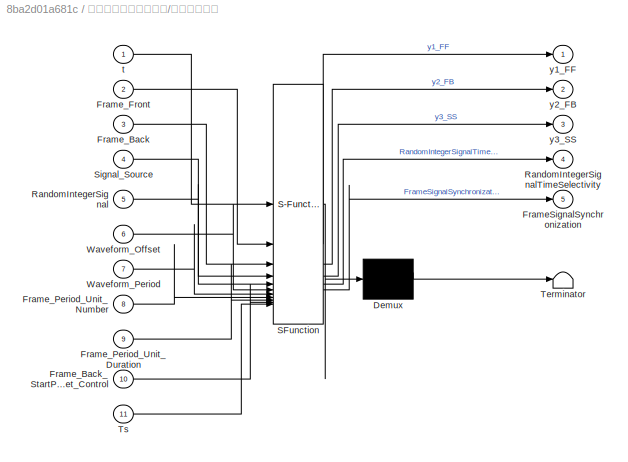
BLOCK [SubSystem] 帧信号和信源信号混合/发射时序控制
  ErrorFcn = Stateflow.Translate.translate
  LibrarySourceBlock = simulink/User-Defined\nFunctions/MATLAB Function
  PermitHierarchicalResolution = ExplicitOnly
  SFBlockType = MATLAB Function
  TreatAsAtomicUnit = on
BLOCK [Demux] 帧信号和信源信号混合/发射时序控制/ Demux 
  Outputs = 1
BLOCK [S-Function] 帧信号和信源信号混合/发射时序控制/ SFunction 
  EnableBusSupport = on
  FunctionName = sf_sfun
  PortCounts = [11 6]
  SFcnIsStateOwnerBlock = off
  SFunctionDeploymentMode = off
  Tag = Stateflow S-Function 2
BLOCK [Terminator] 帧信号和信源信号混合/发射时序控制/ Terminator 
BLOCK [Outport] 帧信号和信源信号混合/发射时序控制/FrameSignalSynchronization
  Port = 5
BLOCK [Inport] 帧信号和信源信号混合/发射时序控制/Frame_Back
  Port = 3
BLOCK [Inport] 帧信号和信源信号混合/发射时序控制/Frame_Back_StartPoint_Offset_Control
  Port = 10
BLOCK [Inport] 帧信号和信源信号混合/发射时序控制/Frame_Front
  Port = 2
BLOCK [Inport] 帧信号和信源信号混合/发射时序控制/Frame_Period_Unit_Duration
  Port = 9
BLOCK [Inport] 帧信号和信源信号混合/发射时序控制/Frame_Period_Unit_Number
  Port = 8
BLOCK [Inport] 帧信号和信源信号混合/发射时序控制/RandomIntegerSignal
  Port = 5
BLOCK [Outport] 帧信号和信源信号混合/发射时序控制/RandomIntegerSignalTimeSelectivity
  Port = 4
BLOCK [Inport] 帧信号和信源信号混合/发射时序控制/Signal_Source
  Port = 4
BLOCK [Inport] 帧信号和信源信号混合/发射时序控制/Ts
  Port = 11
BLOCK [Inport] 帧信号和信源信号混合/发射时序控制/Waveform_Offset
  Port = 6
BLOCK [Inport] 帧信号和信源信号混合/发射时序控制/Waveform_Period
  Port = 7
BLOCK [Inport] 帧信号和信源信号混合/发射时序控制/t
BLOCK [Outport] 帧信号和信源信号混合/发射时序控制/y1_FF
BLOCK [Outport] 帧信号和信源信号混合/发射时序控制/y2_FB
  Port = 2
BLOCK [Outport] 帧信号和信源信号混合/发射时序控制/y3_SS
  Port = 3
BLOCK [Sum] 帧信号和信源信号混合/经发射机调制后的发射信号
  IconShape = rectangular
  Inputs = +++
BLOCK [Inport] 帧信号和信源信号混合/随机码信号
  Port = 3
BLOCK [SubSystem] 帧信号基带解调
BLOCK [Buffer] 帧信号基带解调/Buffer1
  N = model.parameter.Buffer11.Output_buffer_size
  OutputFrames = off
BLOCK [Buffer] 帧信号基带解调/Buffer7
  N = model.parameter.Buffer7.Output_buffer_size
  OutputFrames = off
BLOCK [Inport] 帧信号基带解调/In1
  NameLocation = top
BLOCK [SubSystem] 帧信号基带解调/MATLAB Function3
  ErrorFcn = Stateflow.Translate.translate
  LibrarySourceBlock = simulink/User-Defined\nFunctions/MATLAB Function
  PermitHierarchicalResolution = ExplicitOnly
  SFBlockType = MATLAB Function
  TreatAsAtomicUnit = on
BLOCK [Demux] 帧信号基带解调/MATLAB Function3/ Demux 
  Outputs = 1
BLOCK [S-Function] 帧信号基带解调/MATLAB Function3/ SFunction 
  EnableBusSupport = on
  FunctionName = sf_sfun
  PortCounts = [1 2]
  SFcnIsStateOwnerBlock = off
  SFunctionDeploymentMode = off
  Tag = Stateflow S-Function 6
BLOCK [Terminator] 帧信号基带解调/MATLAB Function3/ Terminator 
BLOCK [Inport] 帧信号基带解调/MATLAB Function3/input
BLOCK [Outport] 帧信号基带解调/MATLAB Function3/y
BLOCK [Outport] 帧信号基带解调/Out1
BLOCK [Reference] 帧信号基带解调/Raised Cosine Receive Filter  REF=commfilt2/Raised Cosine
Receive Filter
  SourceBlock = commfilt2/Raised Cosine\nReceive Filter
  SourceType = Raised Cosine Receive Filter
BLOCK [SubSystem] 帧信号基带调制模块
BLOCK [Buffer] 帧信号基带调制模块/Buffer1
  N = model.parameter.Buffer1.Output_buffer_size
  OutputFrames = off
BLOCK [Buffer] 帧信号基带调制模块/Buffer12
  N = model.parameter.Buffer12.Output_buffer_size
  OutputFrames = off
BLOCK [Reference] 帧信号基带调制模块/Raised Cosine Transmit Filter  REF=commfilt2/Raised Cosine
Transmit Filter
  SourceBlock = commfilt2/Raised Cosine\nTransmit Filter
  SourceType = Raised Cosine Transmit Filter
BLOCK [SubSystem] 帧信号基带调制模块/rateTransitionUserDefined
  ErrorFcn = Stateflow.Translate.translate
  LibrarySourceBlock = simulink/User-Defined\nFunctions/MATLAB Function
  PermitHierarchicalResolution = ExplicitOnly
  SFBlockType = MATLAB Function
  TreatAsAtomicUnit = on
BLOCK [Demux] 帧信号基带调制模块/rateTransitionUserDefined/ Demux 
  Outputs = 1
BLOCK [S-Function] 帧信号基带调制模块/rateTransitionUserDefined/ SFunction 
  EnableBusSupport = on
  FunctionName = sf_sfun
  PortCounts = [1 2]
  SFcnIsStateOwnerBlock = off
  SFunctionDeploymentMode = off
  Tag = Stateflow S-Function 5
BLOCK [Terminator] 帧信号基带调制模块/rateTransitionUserDefined/ Terminator 
BLOCK [Inport] 帧信号基带调制模块/rateTransitionUserDefined/input
BLOCK [Outport] 帧信号基带调制模块/rateTransitionUserDefined/y
BLOCK [Outport] 帧信号基带调制模块/y
  IconDisplay = Signal name
BLOCK [Reference] 帧信号基带调制模块/帧信号编码码元  REF=simulink/Sources/Repeating
Sequence
Stair
  SourceBlock = simulink/Sources/Repeating\nSequence\nStair
  SourceType = Repeating Sequence Stair
BLOCK [SubSystem] 帧信号射频调制
BLOCK [Buffer] 帧信号射频调制/Buffer100
  N = model.parameter.Buffer100.Output_buffer_size
  OutputFrames = off
BLOCK [Buffer] 帧信号射频调制/Buffer121
  N = model.parameter.Buffer121.Output_buffer_size
  NameLocation = right
  OutputFrames = off
BLOCK [Inport] 帧信号射频调制/Carrier1
  Port = 2
BLOCK [Delay] 帧信号射频调制/Delay
  DelayLength = model.parameter.Delay.delay_length
  InputPortMap = u0
  InputProcessing = Columns as channels (frame based)
  NameLocation = right
BLOCK [Outport] 帧信号射频调制/Frame_Back
BLOCK [Outport] 帧信号射频调制/Out2
  NameLocation = left
  Port = 2
BLOCK [Product] 帧信号射频调制/Product
BLOCK [Inport] 帧信号射频调制/input
BLOCK [SubSystem] 帧信号控制模块
BLOCK [Constant] 帧信号控制模块/Constant1
  Value = model.parameter.Frame_control_func.Ts
BLOCK [Constant] 帧信号控制模块/Constant3
  Value = model.parameter.Transmit_timing_control.Frame_Period_Unit_Duration
BLOCK [DataStoreMemory] 帧信号控制模块/Data Store Memory
  DataStoreName = Count1
  OutDataTypeStr = uint64
  ShowAdditionalParam = off
  SignalType = real
  WriteAfterWriteMsg = warning
BLOCK [DataStoreMemory] 帧信号控制模块/Data Store Memory1
  DataStoreName = Count2
  OutDataTypeStr = uint64
  ShowAdditionalParam = off
  SignalType = real
  WriteAfterWriteMsg = warning
BLOCK [DataStoreMemory] 帧信号控制模块/Data Store Memory2
  DataStoreName = tirggerTime
  OutDataTypeStr = int64
  ShowAdditionalParam = off
  SignalType = real
  WriteAfterWriteMsg = warning
BLOCK [DataStoreMemory] 帧信号控制模块/Data Store Memory3
  DataStoreName = lastFrameRecognition
  OutDataTypeStr = int8
  ShowAdditionalParam = off
  SignalType = real
  WriteAfterWriteMsg = warning
BLOCK [DataStoreMemory] 帧信号控制模块/Data Store Memory4
  DataStoreName = StartFFCountFlag
  OutDataTypeStr = int8
  ShowAdditionalParam = off
  SignalType = real
  WriteAfterWriteMsg = warning
BLOCK [DataStoreMemory] 帧信号控制模块/Data Store Memory5
  DataStoreName = StartFBCountFlag
  OutDataTypeStr = int8
  ShowAdditionalParam = off
  SignalType = real
  WriteAfterWriteMsg = warning
BLOCK [Outport] 帧信号控制模块/Sig_Control_Source
BLOCK [Inport] 帧信号控制模块/frameRecognition
BLOCK [SubSystem] 帧信号控制模块/帧信号控制模块
  ErrorFcn = Stateflow.Translate.translate
  LibrarySourceBlock = simulink/User-Defined\nFunctions/MATLAB Function
  PermitHierarchicalResolution = ExplicitOnly
  SFBlockType = MATLAB Function
  TreatAsAtomicUnit = on
BLOCK [Demux] 帧信号控制模块/帧信号控制模块/ Demux 
  Outputs = 1
BLOCK [S-Function] 帧信号控制模块/帧信号控制模块/ SFunction 
  EnableBusSupport = on
  FunctionName = sf_sfun
  PortCounts = [3 2]
  SFcnIsStateOwnerBlock = off
  SFunctionDeploymentMode = off
  Tag = Stateflow S-Function 4
BLOCK [Terminator] 帧信号控制模块/帧信号控制模块/ Terminator 
BLOCK [Inport] 帧信号控制模块/帧信号控制模块/Frame_Period_Unit_Duration
  Port = 2
BLOCK [Outport] 帧信号控制模块/帧信号控制模块/Sig_Control_Source
BLOCK [Inport] 帧信号控制模块/帧信号控制模块/Ts
  Port = 3
BLOCK [Inport] 帧信号控制模块/帧信号控制模块/frameRecognition
BLOCK [SubSystem] 帧信号的合并与去本地载波
BLOCK [Sum] 帧信号的合并与去本地载波/Add1
  IconShape = rectangular
  NameLocation = top
BLOCK [Buffer] 帧信号的合并与去本地载波/Buffer6
  N = model.parameter.Buffer6.Output_buffer_size
  NameLocation = top
  OutputFrames = off
BLOCK [Inport] 帧信号的合并与去本地载波/In1
  NameLocation = top
BLOCK [Inport] 帧信号的合并与去本地载波/In2
  NameLocation = top
  Port = 2
BLOCK [Outport] 帧信号的合并与去本地载波/Out1
BLOCK [SubSystem] 帧信号的延时同步解调
  PortSchema = {"entries":[{"content":{"sides":[{"content":{"connectorIds":["In1","In2"]},"type":"ConnectorPlacement.EquallySpacedRectSide","uuid":"7f942f1a-e4af-4868-9b8e-272828cafa58"},{"content":{"connectorIds":["Out1","Out2"],"side":"RIGHT"},"type":"ConnectorPlacement.EquallySpacedRectSide","uuid":"5681018a-c54d-4fc6-9bb9-b0c232ec8fca"},{"content":{"connectorIds":["In3"],"side":"TOP"},"type":"ConnectorPlacem...<+258ch>
BLOCK [Buffer] 帧信号的延时同步解调/Buffer3
  N = model.parameter.Buffer3.Output_buffer_size
  NameLocation = top
  OutputFrames = off
BLOCK [Buffer] 帧信号的延时同步解调/Buffer4
  N = model.parameter.Buffer4.Output_buffer_size
  NameLocation = top
  OutputFrames = off
BLOCK [Inport] 帧信号的延时同步解调/In3
  Port = 2
BLOCK [Outport] 帧信号的延时同步解调/Out1
BLOCK [Outport] 帧信号的延时同步解调/Out2
  Port = 2
BLOCK [Product] 帧信号的延时同步解调/Product1
  NameLocation = top
BLOCK [Product] 帧信号的延时同步解调/Product2
  NameLocation = top
BLOCK [Inport] 帧信号的延时同步解调/y1_FF
  Port = 3
BLOCK [Inport] 帧信号的延时同步解调/y2_FB
BLOCK [SubSystem] 帧序列识别器
BLOCK [Buffer] 帧序列识别器/Buffer5
  Commented = on
  N = 100
  OutputFrames = off
BLOCK [Reference] 帧序列识别器/Compare To Constant  REF=simulink/Logic and Bit
Operations/Compare
To Constant
  SourceBlock = simulink/Logic and Bit\nOperations/Compare\nTo Constant
  SourceType = Compare To Constant
BLOCK [DiscreteFir] 帧序列识别器/Discrete FIR Filter
  Coefficients = [0	0	0	0	0	0	0	0	0	0	0	0	0	0	0	0	0	0	0	0	0	0	0	0	0	0	0	0	0	0	0	0	0	0	0	0	0	0	0	0	0	0	0	0	0	0	0	0	0	0	0	0	0	0	0	0	0	0	0	0	0	0	0	0	0	0	0	0	0	0	0	0	0	0	0	0	0	0	0	0	0	0	0	0	0	0	0	0	0	0	0	0	0	0	0	0	0	0	0	0	0	0	0	0	0	0	0	0	0	0	0	6.10351562500000e-05	6.10351562500000e-05	6.10351562500000e-05	6.10351562500000e-05	6.10351562500000e-05	6.10351562500000e-05	6.10351562500000e-05	6.10351562500000e-05	6.1035156...<+9825ch>
  Commented = on
  InputPortMap = u0
  NameLocation = top
  OutputPortMap = o0
BLOCK [Inport] 帧序列识别器/In1
BLOCK [RateTransition] 帧序列识别器/Rate Transition4
  Commented = on
BLOCK [SubSystem] 帧序列识别器/SpectrumMeasure
  Commented = on
BLOCK [Buffer] 帧序列识别器/SpectrumMeasure/Buffer5
  N = 1
  OutputFrames = off
BLOCK [RateTransition] 帧序列识别器/SpectrumMeasure/Rate Transition1
  Commented = on
  OutPortSampleTime = 1e-8
BLOCK [SpectrumAnalyzer] 帧序列识别器/SpectrumMeasure/Spectrum Analyzer2
  ScopeSpecificationString = spbscopes.SpectrumAnalyzerBlockCfg('CurrentConfiguration', extmgr.ConfigurationSet(extmgr.Configuration('Core','General UI',true),extmgr.Configuration('Core','Source UI',true),extmgr.Configuration('Sources','WiredSimulink',true),extmgr.Configuration('Visuals','Spectrum',true,'AxesProperties',struct('Color',{[0 0 0],[0 0 0]},'XColor',{[0.686274509803922 0.686274509803922 0.686274509803922],[0.68627...<+3097ch>
BLOCK [Inport] 帧序列识别器/SpectrumMeasure/y
BLOCK [SubSystem] 帧序列识别器/Subsystem
  NameLocation = left
BLOCK [Constant] 帧序列识别器/Subsystem/Constant
BLOCK [Constant] 帧序列识别器/Subsystem/Constant1
  Value = -1
BLOCK [If] 帧序列识别器/Subsystem/If
  IfExpression = u1 ==0
BLOCK [SubSystem] 帧序列识别器/Subsystem/If Action Subsystem
  TreatAsAtomicUnit = on
BLOCK [ActionPort] 帧序列识别器/Subsystem/If Action Subsystem/Action Port
  ActionPortLabel = if(u1 ==0)
BLOCK [Inport] 帧序列识别器/Subsystem/If Action Subsystem/In1
BLOCK [Outport] 帧序列识别器/Subsystem/If Action Subsystem/Out1
BLOCK [SubSystem] 帧序列识别器/Subsystem/If Action Subsystem1
  TreatAsAtomicUnit = on
BLOCK [ActionPort] 帧序列识别器/Subsystem/If Action Subsystem1/Action Port
  ActionPortLabel = else
BLOCK [Inport] 帧序列识别器/Subsystem/If Action Subsystem1/In1
BLOCK [Outport] 帧序列识别器/Subsystem/If Action Subsystem1/Out1
BLOCK [Inport] 帧序列识别器/Subsystem/In1
BLOCK [Merge] 帧序列识别器/Subsystem/Merge
BLOCK [Outport] 帧序列识别器/Subsystem/Out1
BLOCK [SubSystem] 帧序列识别器/Subsystem1
  NameLocation = left
BLOCK [Constant] 帧序列识别器/Subsystem1/Constant
BLOCK [Constant] 帧序列识别器/Subsystem1/Constant1
  Value = -1
BLOCK [If] 帧序列识别器/Subsystem1/If
  IfExpression = u1 ==3
BLOCK [SubSystem] 帧序列识别器/Subsystem1/If Action Subsystem
  TreatAsAtomicUnit = on
BLOCK [ActionPort] 帧序列识别器/Subsystem1/If Action Subsystem/Action Port
  ActionPortLabel = if(u1 ==3)
BLOCK [Inport] 帧序列识别器/Subsystem1/If Action Subsystem/In1
BLOCK [Outport] 帧序列识别器/Subsystem1/If Action Subsystem/Out1
BLOCK [SubSystem] 帧序列识别器/Subsystem1/If Action Subsystem1
  TreatAsAtomicUnit = on
BLOCK [ActionPort] 帧序列识别器/Subsystem1/If Action Subsystem1/Action Port
  ActionPortLabel = else
BLOCK [Inport] 帧序列识别器/Subsystem1/If Action Subsystem1/In1
BLOCK [Outport] 帧序列识别器/Subsystem1/If Action Subsystem1/Out1
BLOCK [Inport] 帧序列识别器/Subsystem1/In1
BLOCK [Merge] 帧序列识别器/Subsystem1/Merge
BLOCK [Outport] 帧序列识别器/Subsystem1/Out1
BLOCK [SubSystem] 帧序列识别器/Subsystem2
  NameLocation = left
BLOCK [Constant] 帧序列识别器/Subsystem2/Constant
BLOCK [Constant] 帧序列识别器/Subsystem2/Constant1
  Value = -1
BLOCK [If] 帧序列识别器/Subsystem2/If
  IfExpression = u1 ==1
BLOCK [SubSystem] 帧序列识别器/Subsystem2/If Action Subsystem
  TreatAsAtomicUnit = on
BLOCK [ActionPort] 帧序列识别器/Subsystem2/If Action Subsystem/Action Port
  ActionPortLabel = if(u1 ==1)
BLOCK [Inport] 帧序列识别器/Subsystem2/If Action Subsystem/In1
BLOCK [Outport] 帧序列识别器/Subsystem2/If Action Subsystem/Out1
BLOCK [SubSystem] 帧序列识别器/Subsystem2/If Action Subsystem1
  TreatAsAtomicUnit = on
BLOCK [ActionPort] 帧序列识别器/Subsystem2/If Action Subsystem1/Action Port
  ActionPortLabel = else
BLOCK [Inport] 帧序列识别器/Subsystem2/If Action Subsystem1/In1
BLOCK [Outport] 帧序列识别器/Subsystem2/If Action Subsystem1/Out1
BLOCK [Inport] 帧序列识别器/Subsystem2/In1
BLOCK [Merge] 帧序列识别器/Subsystem2/Merge
BLOCK [Outport] 帧序列识别器/Subsystem2/Out1
BLOCK [SubSystem] 帧序列识别器/Subsystem3
  NameLocation = left
BLOCK [Constant] 帧序列识别器/Subsystem3/Constant
BLOCK [Constant] 帧序列识别器/Subsystem3/Constant1
  Value = -1
BLOCK [If] 帧序列识别器/Subsystem3/If
  IfExpression = u1 ==2
BLOCK [SubSystem] 帧序列识别器/Subsystem3/If Action Subsystem
  TreatAsAtomicUnit = on
BLOCK [ActionPort] 帧序列识别器/Subsystem3/If Action Subsystem/Action Port
  ActionPortLabel = if(u1 ==2)
BLOCK [Inport] 帧序列识别器/Subsystem3/If Action Subsystem/In1
BLOCK [Outport] 帧序列识别器/Subsystem3/If Action Subsystem/Out1
BLOCK [SubSystem] 帧序列识别器/Subsystem3/If Action Subsystem1
  TreatAsAtomicUnit = on
BLOCK [ActionPort] 帧序列识别器/Subsystem3/If Action Subsystem1/Action Port
  ActionPortLabel = else
BLOCK [Inport] 帧序列识别器/Subsystem3/If Action Subsystem1/In1
BLOCK [Outport] 帧序列识别器/Subsystem3/If Action Subsystem1/Out1
BLOCK [Inport] 帧序列识别器/Subsystem3/In1
BLOCK [Merge] 帧序列识别器/Subsystem3/Merge
BLOCK [Outport] 帧序列识别器/Subsystem3/Out1
BLOCK [SubSystem] 帧序列识别器/Subsystem4
  NameLocation = left
BLOCK [Constant] 帧序列识别器/Subsystem4/Constant
BLOCK [Constant] 帧序列识别器/Subsystem4/Constant1
  Value = -1
BLOCK [If] 帧序列识别器/Subsystem4/If
  IfExpression = u1 ==3
BLOCK [SubSystem] 帧序列识别器/Subsystem4/If Action Subsystem
  TreatAsAtomicUnit = on
BLOCK [ActionPort] 帧序列识别器/Subsystem4/If Action Subsystem/Action Port
  ActionPortLabel = if(u1 ==3)
BLOCK [Inport] 帧序列识别器/Subsystem4/If Action Subsystem/In1
BLOCK [Outport] 帧序列识别器/Subsystem4/If Action Subsystem/Out1
BLOCK [SubSystem] 帧序列识别器/Subsystem4/If Action Subsystem1
  TreatAsAtomicUnit = on
BLOCK [ActionPort] 帧序列识别器/Subsystem4/If Action Subsystem1/Action Port
  ActionPortLabel = else
BLOCK [Inport] 帧序列识别器/Subsystem4/If Action Subsystem1/In1
BLOCK [Outport] 帧序列识别器/Subsystem4/If Action Subsystem1/Out1
BLOCK [Inport] 帧序列识别器/Subsystem4/In1
BLOCK [Merge] 帧序列识别器/Subsystem4/Merge
BLOCK [Outport] 帧序列识别器/Subsystem4/Out1
BLOCK [SubSystem] 帧序列识别器/Subsystem5
  NameLocation = left
BLOCK [Constant] 帧序列识别器/Subsystem5/Constant
BLOCK [Constant] 帧序列识别器/Subsystem5/Constant1
  Value = -1
BLOCK [If] 帧序列识别器/Subsystem5/If
  IfExpression = u1 ==2
BLOCK [SubSystem] 帧序列识别器/Subsystem5/If Action Subsystem
  TreatAsAtomicUnit = on
BLOCK [ActionPort] 帧序列识别器/Subsystem5/If Action Subsystem/Action Port
  ActionPortLabel = if(u1 ==2)
BLOCK [Inport] 帧序列识别器/Subsystem5/If Action Subsystem/In1
BLOCK [Outport] 帧序列识别器/Subsystem5/If Action Subsystem/Out1
BLOCK [SubSystem] 帧序列识别器/Subsystem5/If Action Subsystem1
  TreatAsAtomicUnit = on
BLOCK [ActionPort] 帧序列识别器/Subsystem5/If Action Subsystem1/Action Port
  ActionPortLabel = else
BLOCK [Inport] 帧序列识别器/Subsystem5/If Action Subsystem1/In1
BLOCK [Outport] 帧序列识别器/Subsystem5/If Action Subsystem1/Out1
BLOCK [Inport] 帧序列识别器/Subsystem5/In1
BLOCK [Merge] 帧序列识别器/Subsystem5/Merge
BLOCK [Outport] 帧序列识别器/Subsystem5/Out1
BLOCK [SubSystem] 帧序列识别器/Subsystem6
  NameLocation = left
BLOCK [Constant] 帧序列识别器/Subsystem6/Constant
BLOCK [Constant] 帧序列识别器/Subsystem6/Constant1
  Value = -1
BLOCK [If] 帧序列识别器/Subsystem6/If
  IfExpression = u1 ==1
BLOCK [SubSystem] 帧序列识别器/Subsystem6/If Action Subsystem
  TreatAsAtomicUnit = on
BLOCK [ActionPort] 帧序列识别器/Subsystem6/If Action Subsystem/Action Port
  ActionPortLabel = if(u1 ==1)
BLOCK [Inport] 帧序列识别器/Subsystem6/If Action Subsystem/In1
BLOCK [Outport] 帧序列识别器/Subsystem6/If Action Subsystem/Out1
BLOCK [SubSystem] 帧序列识别器/Subsystem6/If Action Subsystem1
  TreatAsAtomicUnit = on
BLOCK [ActionPort] 帧序列识别器/Subsystem6/If Action Subsystem1/Action Port
  ActionPortLabel = else
BLOCK [Inport] 帧序列识别器/Subsystem6/If Action Subsystem1/In1
BLOCK [Outport] 帧序列识别器/Subsystem6/If Action Subsystem1/Out1
BLOCK [Inport] 帧序列识别器/Subsystem6/In1
BLOCK [Merge] 帧序列识别器/Subsystem6/Merge
BLOCK [Outport] 帧序列识别器/Subsystem6/Out1
BLOCK [SubSystem] 帧序列识别器/Subsystem7
  NameLocation = left
BLOCK [Constant] 帧序列识别器/Subsystem7/Constant
BLOCK [Constant] 帧序列识别器/Subsystem7/Constant1
  Value = -1
BLOCK [If] 帧序列识别器/Subsystem7/If
  IfExpression = u1 ==3
BLOCK [SubSystem] 帧序列识别器/Subsystem7/If Action Subsystem
  TreatAsAtomicUnit = on
BLOCK [ActionPort] 帧序列识别器/Subsystem7/If Action Subsystem/Action Port
  ActionPortLabel = if(u1 ==3)
BLOCK [Inport] 帧序列识别器/Subsystem7/If Action Subsystem/In1
BLOCK [Outport] 帧序列识别器/Subsystem7/If Action Subsystem/Out1
BLOCK [SubSystem] 帧序列识别器/Subsystem7/If Action Subsystem1
  TreatAsAtomicUnit = on
BLOCK [ActionPort] 帧序列识别器/Subsystem7/If Action Subsystem1/Action Port
  ActionPortLabel = else
BLOCK [Inport] 帧序列识别器/Subsystem7/If Action Subsystem1/In1
BLOCK [Outport] 帧序列识别器/Subsystem7/If Action Subsystem1/Out1
BLOCK [Inport] 帧序列识别器/Subsystem7/In1
BLOCK [Merge] 帧序列识别器/Subsystem7/Merge
BLOCK [Outport] 帧序列识别器/Subsystem7/Out1
BLOCK [Sum] 帧序列识别器/Sum
  Inputs = |++++++++
  NameLocation = left
BLOCK [SubSystem] 帧序列识别器/Triggered Subsystem
  Commented = on
  TreatAsAtomicUnit = on
BLOCK [Outport] 帧序列识别器/Triggered Subsystem/Out1
BLOCK [TriggerPort] 帧序列识别器/Triggered Subsystem/Trigger
  StatesWhenEnabling = held
  TriggerType = falling
  VariantControl = (inherit)
BLOCK [Inport] 帧序列识别器/Triggered Subsystem/y3_SS
BLOCK [UnitDelay] 帧序列识别器/Unit Delay1
  HasFrameUpgradeWarning = on
  SampleTime = -1
BLOCK [UnitDelay] 帧序列识别器/Unit Delay2
  HasFrameUpgradeWarning = on
  SampleTime = -1
BLOCK [UnitDelay] 帧序列识别器/Unit Delay3
  HasFrameUpgradeWarning = on
  SampleTime = -1
BLOCK [UnitDelay] 帧序列识别器/Unit Delay4
  HasFrameUpgradeWarning = on
  SampleTime = -1
BLOCK [UnitDelay] 帧序列识别器/Unit Delay5
  HasFrameUpgradeWarning = on
  SampleTime = -1
BLOCK [UnitDelay] 帧序列识别器/Unit Delay6
  HasFrameUpgradeWarning = on
  SampleTime = -1
BLOCK [UnitDelay] 帧序列识别器/Unit Delay7
  HasFrameUpgradeWarning = on
  SampleTime = -1
BLOCK [Outport] 帧序列识别器/u
BLOCK [SubSystem] 接收端本地载波
BLOCK [Buffer] 接收端本地载波/Buffer9
  N = model.parameter.Buffer9.Output_buffer_size
  OutputFrames = off
BLOCK [Math] 接收端本地载波/Conj
  Operator = conj
BLOCK [Reference] 接收端本地载波/Delay5  REF=dspobslib/Delay
  SourceBlock = dspobslib/Delay
  SourceType = Delay
  UserDataPersistent = on
BLOCK [Inport] 接收端本地载波/In1
BLOCK [Outport] 接收端本地载波/Out1
BLOCK [Product] 接收端的解调信源码元
BLOCK [SubSystem] 本地载波生成模块
BLOCK [Outport] 本地载波生成模块/Carrier1
  IconDisplay = Signal name
BLOCK [Constant] 本地载波生成模块/Constant3
  Value = model.parameter.Sine_Carrier_Num
BLOCK [Constant] 本地载波生成模块/Constant5
  Value = model.parameter.Sine_Carrier_Freq
BLOCK [Constant] 本地载波生成模块/Constant7
  Value = model.parameter.Sine_Carrier_Ampl
BLOCK [DigitalClock] 本地载波生成模块/Digital Clock2
  SampleTime = model.parameter.Digital_Clock2.CarrierTs
BLOCK [SubSystem] 本地载波生成模块/Multitone_Carrier_Generate
  ErrorFcn = Stateflow.Translate.translate
  LibrarySourceBlock = simulink/User-Defined\nFunctions/MATLAB Function
  PermitHierarchicalResolution = ExplicitOnly
  SFBlockType = MATLAB Function
  TreatAsAtomicUnit = on
BLOCK [Demux] 本地载波生成模块/Multitone_Carrier_Generate/ Demux 
  Outputs = 1
BLOCK [S-Function] 本地载波生成模块/Multitone_Carrier_Generate/ SFunction 
  EnableBusSupport = on
  FunctionName = sf_sfun
  PortCounts = [4 2]
  SFcnIsStateOwnerBlock = off
  SFunctionDeploymentMode = off
  Tag = Stateflow S-Function 14
BLOCK [Terminator] 本地载波生成模块/Multitone_Carrier_Generate/ Terminator 
BLOCK [Outport] 本地载波生成模块/Multitone_Carrier_Generate/Multitone_Carrier
BLOCK [Inport] 本地载波生成模块/Multitone_Carrier_Generate/Sine_Carrier_Ampl
  Port = 3
BLOCK [Inport] 本地载波生成模块/Multitone_Carrier_Generate/Sine_Carrier_Freq
  Port = 2
BLOCK [Inport] 本地载波生成模块/Multitone_Carrier_Generate/Sine_Carrier_Num
BLOCK [Inport] 本地载波生成模块/Multitone_Carrier_Generate/t
  Port = 4
BLOCK [SubSystem] 跳频调制
BLOCK [Reference] 跳频调制/Baseband PLL  REF=commsynccomp2/Baseband
PLL
  Commented = on
  SourceBlock = commsynccomp2/Baseband\nPLL
  SourceType = Baseband PLL
BLOCK [Reference] 跳频调制/Bit to Integer Converter  REF=simulink/Logic and Bit
Operations/Bit to Integer
Converter
  SourceBlock = simulink/Logic and Bit\nOperations/Bit to Integer\nConverter
  SourceType = Bit to Integer Converter
BLOCK [Buffer] 跳频调制/Buffer2
  N = model.parameter.Buffer2.Output_buffer_size
  OutputFrames = off
BLOCK [Reference] 跳频调制/Charge Pump PLL  REF=commsynccomp2/Charge Pump
PLL
  Commented = on
  SourceBlock = commsynccomp2/Charge Pump\nPLL
  SourceType = Charge Pump PLL
BLOCK [Reference] 跳频调制/Linearized Baseband PLL  REF=commsynccomp2/Linearized Baseband
PLL
  Commented = on
  SourceBlock = commsynccomp2/Linearized Baseband\nPLL
  SourceType = Linearized Baseband PLL
BLOCK [Reference] 跳频调制/M-FSK Modulator Baseband1  REF=commdigbbndfm2/M-FSK
Modulator
Baseband
  SourceBlock = commdigbbndfm2/M-FSK\nModulator\nBaseband
  SourceType = M-FSK Modulator Baseband
  UserDataPersistent = on
BLOCK [Inport] 跳频调制/Modulated Signal
BLOCK [Reference] 跳频调制/PN Sequence Generator1  REF=commseqgen3/PN Sequence
Generator
  SourceBlock = commseqgen3/PN Sequence\nGenerator
  SourceType = PN Sequence Generator
BLOCK [Outport] 跳频调制/PN_Out
  IconDisplay = Signal name
  Port = 2
BLOCK [Product] 跳频调制/Product
BLOCK [Outport] 跳频调制/信源信号
BLOCK [SubSystem] 间歇PN码与接收端信源的时序同步
BLOCK [Inport] 间歇PN码与接收端信源的时序同步/In1
BLOCK [Inport] 间歇PN码与接收端信源的时序同步/In2
  Port = 2
BLOCK [Outport] 间歇PN码与接收端信源的时序同步/Out1
BLOCK [Product] 间歇PN码与接收端信源的时序同步/发送端的间歇PN码
ANNOTATION (root): 此处延时1e-5
ANNOTATION (root): 此处延时75e-6
ANNOTATION (root): 链路的约束条件： 1、帧信号射频调制前的载波延时要小于等于帧信号延时； 2、信源部分跳频调制前的载波延时要小于等于信源信号延时； 3、接收端帧信号相干解调需要与载波延时同步； 4、帧信号控制模块中的采样时间为其进入模块前的信号采样时间； 5、帧信源混合后的信号进行延时，以确保帧信号对信源的时序控制作用； 6、信源相干解调部分需要与跳频载波延时同步； 7、RS解码部分需要对信源整体的基带码元延时进行计算，使得解码时的延时必须为样本数的15倍； 8、与接收端信源解码部分对应的间歇PN码序列也要进行延时，且须与接收端解码进行时序对齐； 9、对RS解码后的信源进行时序控制的信号须与接收端解码进行时序对齐
ANNOTATION (root): 仍有0.00245的时延
ANNOTATION (root): 使用Delay1的仿真速度会快很多
ANNOTATION (root): 对RS解码后的信号进行时序控制
ANNOTATION (root): 对发送端信号进行时序控制
ANNOTATION (root): 接收端信源的时序控制
ANNOTATION (root): 控制序列首部须延时0.00018，尾部须延时0
ANNOTATION (root): 此处产生了2e-5延时，可近似为2.5e-5，原因仍需查找
ANNOTATION (root): 此处延时12.25e-4
ANNOTATION (root): 此处延时225e-5
ANNOTATION (root): 此处延时232.5e-5
ANNOTATION (root): 此处延时4.5e-4
ANNOTATION (root): 此处延时7.5e-5
ANNOTATION (root): 此处延时7.75e-4
ANNOTATION (root): 此时尾部对上了
ANNOTATION (root): 比较信源部分误码率
ANNOTATION 信源RS解码: model.Intermediate_variable.system_frame_speed_5
ANNOTATION 信源RS解码: 信源到此延时大概0.003
ANNOTATION 信源RS解码: 信源部分的RS解码
ANNOTATION 信源RS解码: 此处延时6e-4
ANNOTATION 信源RS解码: 此处无延时
ANNOTATION 信源RS解码: 注意此处的延时设置，使得RS解码对齐信源部分，并在后续的码元比较时舍弃前三个编码周期(帧周期)的比特位
ANNOTATION 信源基带解调: 此处延时2.5e-5
ANNOTATION 信源基带解调: 接收端信源的基带解调
ANNOTATION 信源相干解调: 接收端信源的相干解调
ANNOTATION 信源部分基带调制: model.Intermediate_variable.system_frame_speed_4
ANNOTATION 信源部分基带调制: 信源部分基带调制
ANNOTATION 信源部分基带调制: 此处延时2.5e-5
ANNOTATION 信源部分基带调制: 此处延时6e-4
ANNOTATION 信源部分基带调制: 此处无延时
ANNOTATION 信源随机码混合相加前的延时同步: 此处延时2.5e-5
ANNOTATION 信源随机码混合相加前的延时同步: 此处无延时
ANNOTATION 信源随机码混合相加前的延时同步: 该条支路对发送端的随机码序列进行同步时域处理，用于判断链路 的误码率
ANNOTATION 帧信号和信源信号混合: 该子模型没有产生延时
ANNOTATION 帧信号和信源信号混合/Subsystem2/NosieGen: 干扰方式
ANNOTATION 帧信号和信源信号混合/Subsystem2/NosieGen: 干扰方式模块功能： 由调制方式控制位来控制调制方式，控制位变化范围是[0-4] 控制位==0的时候，调制方式模块不工作 控制位==1的时候，是线性跳频干扰 控制位==2的时候，是步进跳频干扰 控制位不在上面集合范围的时候，警告
ANNOTATION 帧信号和信源信号混合/Subsystem2/NosieGen: 干扰源
ANNOTATION 帧信号和信源信号混合/Subsystem2/NosieGen: 干扰源模块功能： 由干扰源控制位来控制干扰源的波形，控制变换范围是[1-3] 控制位==1的时候，输出高斯白噪声 控制位==2的时候，输出随机二元码调制噪声 控制位==3的时候，输出正弦波 控制位不在上面的集合的时候，没有输出
ANNOTATION 帧信号和信源信号混合/Subsystem2/NosieGen: 调制方式
ANNOTATION 帧信号和信源信号混合/Subsystem2/NosieGen: 调制方式模块功能： 由调制方式控制位来控制调制方式，控制位变化范围是[0-4] 控制位==0的时候，调制方式模块不工作 控制位==1的时候，通过AM 控制位==2的时候，通过PM 控制位==3的时候，通过FM 控制位==4的时候，通过增益15 控制位不在上面集合范围的时候，警告
ANNOTATION 帧信号和信源信号混合/Subsystem2/NosieGen/干扰方式/ChirpBasebandSignalGenerate: 线性调频模块：线性调频公式(y=exp(2*pi*(fmin*t+0.5*k_chirp*t^2))) 输入参数： 1.fmin,为线性调频信号的起始频率 2.fmax为线性调频信号的终止频率 3.T_chirp为线性调频信号的调频时间 斜率k_sweep = (f_min-f_max)/T_chirp
ANNOTATION 帧信号和信源信号混合/Subsystem2/NosieGen/干扰方式/ChirpBasebandSignalGenerate: 线性调频模块
ANNOTATION 帧信号和信源信号混合/Subsystem2/NosieGen/干扰方式/StepSweepSignalGenerate: 步进调频模块
ANNOTATION 帧信号和信源信号混合/Subsystem2/NosieGen/干扰源/PN MSK Noise: MSK模块： MSK的公式: y = exp(2*pi*fc*t+pi*ak*t/(2Ts)+phi_k) 输入参数： 1. fc:为MSK的中心频率 2. ak:为MSK的第k码元值，数值[-1或者+1] 3. Ts:为MSK的码元周期 4. phi_k:为MSK的第k个码元的修正相位 5. phi_0:为MSK的初始相位
ANNOTATION 帧信号和信源信号混合/Subsystem2/NosieGen/干扰源/PN MSK Noise: MSK模块
ANNOTATION 帧信号和信源信号混合/Subsystem2/NosieGen/干扰源/Random Binary Noise: 改模块采用的是概率为贝努利分布的随机二进制数，随机二元码调制噪声的公式如下： Jt = Am*Jn*cos(2*pi*fj*t+phi0) 本质上是数字调相信号，相位翻转180°
ANNOTATION 帧信号和信源信号混合/Subsystem2/NosieGen/干扰源/Random Binary Noise: 随机二进制调制噪声
ANNOTATION 帧信号基带解调: 帧信号的基带解调
ANNOTATION 帧信号基带解调: 此处延时为2.5e-4
ANNOTATION 帧信号基带解调: 此处延时为20e-4
ANNOTATION 帧信号基带解调: 此处无延时
ANNOTATION 帧信号基带调制模块: model.Intermediate_variable.system_frame_speed_1
ANNOTATION 帧信号基带调制模块: model.Intermediate_variable.system_frame_speed_2
ANNOTATION 帧信号基带调制模块: 帧信号基带调制模块
ANNOTATION 帧信号基带调制模块: 此处buffer的设计需要让插值后buffer的速率等于帧信号的编码速率
ANNOTATION 帧信号基带调制模块: 此处产生了2.5e-4延时
ANNOTATION 帧信号基带调制模块: 此处产生了200e-5的延时
ANNOTATION 帧信号基带调制模块: 此处无延时
ANNOTATION 帧信号射频调制: model.Intermediate_variable.system_frame_speed_3
ANNOTATION 帧信号射频调制: 射频调制模拟以及部分本地载波相加
ANNOTATION 帧信号射频调制: 此处产生了195e-5延时
ANNOTATION 帧信号射频调制: 此处产生了5e-5延时
ANNOTATION 帧信号射频调制: 此处无延时
ANNOTATION 帧信号控制模块: 帧信号控制模块
ANNOTATION 帧信号的合并与去本地载波: 接收端去本地载波
ANNOTATION 帧信号的合并与去本地载波: 此处无延时
ANNOTATION 帧信号的延时同步解调: 接收端帧头帧尾信号分别相干解调
ANNOTATION 帧信号的延时同步解调: 此处延时10e-6
ANNOTATION 帧信号的延时同步解调: 此处延时5e-6
ANNOTATION 帧序列识别器: Buffer和RateTransition都会改变采样速率，但是Buffer不会改变原信号的频率，只会改变帧信号内的样本数，会额外引入延时，其改变的速率为帧速率，样本速率并没有改变，但RateTransition是直接改变样本速率，会将快采样频率信号的频率降低转换速率倍数，使得原信号频率发生改变
ANNOTATION 接收端本地载波: 此处无延时
ANNOTATION 接收端本地载波: 此处延时5e-6
ANNOTATION 接收端本地载波: 该条支路对接收端的本地载波进行建模，从而建模相干解调过程
ANNOTATION 本地载波生成模块: 帧信号对应的本地载波生成
ANNOTATION 跳频调制: model.Intermediate_variable.system_frame_speed_4
ANNOTATION 跳频调制: 产生跳频序列，并生成基带跳频，跳频间隔是1MHz,跳频范围是[0.5MHz,7.5MHz]
ANNOTATION 跳频调制: 此处无延时
ANNOTATION 跳频调制: 跳频
ANNOTATION 间歇PN码与接收端信源的时序同步: 对RS解码后的信号和接收端对应的间歇PN码截取正确码元部分，去除由于延时导致的 不正确RS解码bit
LINE Bit Error Rate Calculation/Error Rate Calculation:1 -> Bit Error Rate Calculation/Out1:1
LINE Bit Error Rate Calculation/In1:1 -> Bit Error Rate Calculation/Integer to Bit Converter:1
LINE Bit Error Rate Calculation/In2:1 -> Bit Error Rate Calculation/Integer to Bit Converter1:1
LINE Bit Error Rate Calculation/Integer to Bit Converter1:1 -> Bit Error Rate Calculation/Error Rate Calculation:2
LINE Bit Error Rate Calculation/Integer to Bit Converter:1 -> Bit Error Rate Calculation/Error Rate Calculation:1
NET Bit Error Rate Calculation:1 -> Coded BER:1, To Workspace:1
LINE Buffer10:1 -> Delay6:1
LINE Buffer13:1 -> Delay8:1
LINE Buffer5:1 -> 信源相干解调:2
LINE Delay14:1 -> Rate Transition1:1
LINE Delay2:1 -> Rate Transition:1
LINE Delay6:1 -> 间歇PN码与接收端信源的时序同步:1
LINE Delay7:1 -> Product5:1
NET Delay8:1 -> Delay9:1, Logical Operator1:2
LINE Delay9:1 -> Logical Operator1:1
NET Logical Operator1:1 -> 接收端的解调信源码元:1, 间歇PN码与接收端信源的时序同步:2
LINE Logical Operator:1 -> 帧信号控制模块:1
LINE Product5:1 -> Buffer5:1
LINE Rate Transition1:1 -> Buffer13:1
LINE Rate Transition:1 -> Buffer10:1
NET 信源RS解码/Buffer5:1 -> 信源RS解码/Delay10:1, 信源RS解码/Delay5:1
LINE 信源RS解码/Buffer8:1 -> 信源RS解码/Delay4:1
LINE 信源RS解码/Constant:1 -> 信源RS解码/If:1
LINE 信源RS解码/Delay10:1 -> 信源RS解码/Integer-Output RS Decoder1:1
LINE 信源RS解码/Delay4:1 -> 信源RS解码/Matrix Deinterleaver:1
LINE 信源RS解码/Delay5:1 -> 信源RS解码/If Action Subsystem4:1
LINE 信源RS解码/If Action Subsystem1/In1:1 -> 信源RS解码/If Action Subsystem1/Out1:1
LINE 信源RS解码/If Action Subsystem1:1 -> 信源RS解码/Merge2:2
LINE 信源RS解码/If Action Subsystem4/In1:1 -> 信源RS解码/If Action Subsystem4/Out1:1
LINE 信源RS解码/If Action Subsystem4:1 -> 信源RS解码/Merge2:1
LINE 信源RS解码/If:1 -> 信源RS解码/If Action Subsystem1:ifaction
LINE 信源RS解码/If:2 -> 信源RS解码/If Action Subsystem4:ifaction
LINE 信源RS解码/In1:1 -> 信源RS解码/Buffer8:1
LINE 信源RS解码/Integer-Output RS Decoder1:1 -> 信源RS解码/If Action Subsystem1:1
LINE 信源RS解码/Integer-Output RS Decoder1:2 -> 信源RS解码/Total Number of Corrected Errors:1
LINE 信源RS解码/Matrix Deinterleaver:1 -> 信源RS解码/Buffer5:1
LINE 信源RS解码/Merge2:1 -> 信源RS解码/Out1:1
LINE 信源RS解码:1 -> 接收端的解调信源码元:2
LINE 信源基带解调/Baseband Signal Selector Rx/Constant:1 -> 信源基带解调/Baseband Signal Selector Rx/If:1
LINE 信源基带解调/Baseband Signal Selector Rx/If Action Subsystem1/In1:1 -> 信源基带解调/Baseband Signal Selector Rx/If Action Subsystem1/M-PSK Demodulator Baseband:1
LINE 信源基带解调/Baseband Signal Selector Rx/If Action Subsystem1/M-PSK Demodulator Baseband:1 -> 信源基带解调/Baseband Signal Selector Rx/If Action Subsystem1/Out1:1
LINE 信源基带解调/Baseband Signal Selector Rx/If Action Subsystem1:1 -> 信源基带解调/Baseband Signal Selector Rx/Merge:2
LINE 信源基带解调/Baseband Signal Selector Rx/If Action Subsystem4/In1:1 -> 信源基带解调/Baseband Signal Selector Rx/If Action Subsystem4/Rectangular QAM Demodulator Baseband:1
LINE 信源基带解调/Baseband Signal Selector Rx/If Action Subsystem4/Rectangular QAM Demodulator Baseband:1 -> 信源基带解调/Baseband Signal Selector Rx/If Action Subsystem4/Out1:1
LINE 信源基带解调/Baseband Signal Selector Rx/If Action Subsystem4:1 -> 信源基带解调/Baseband Signal Selector Rx/Merge:1
LINE 信源基带解调/Baseband Signal Selector Rx/If Action Subsystem5/In1:1 -> 信源基带解调/Baseband Signal Selector Rx/If Action Subsystem5/Rectangular QAM Demodulator Baseband:1
LINE 信源基带解调/Baseband Signal Selector Rx/If Action Subsystem5/Rectangular QAM Demodulator Baseband:1 -> 信源基带解调/Baseband Signal Selector Rx/If Action Subsystem5/Out1:1
LINE 信源基带解调/Baseband Signal Selector Rx/If Action Subsystem5:1 -> 信源基带解调/Baseband Signal Selector Rx/Merge:3
LINE 信源基带解调/Baseband Signal Selector Rx/If:1 -> 信源基带解调/Baseband Signal Selector Rx/If Action Subsystem4:ifaction
LINE 信源基带解调/Baseband Signal Selector Rx/If:2 -> 信源基带解调/Baseband Signal Selector Rx/If Action Subsystem1:ifaction
LINE 信源基带解调/Baseband Signal Selector Rx/If:3 -> 信源基带解调/Baseband Signal Selector Rx/If Action Subsystem5:ifaction
NET 信源基带解调/Baseband Signal Selector Rx/In1:1 -> 信源基带解调/Baseband Signal Selector Rx/If Action Subsystem1:1, 信源基带解调/Baseband Signal Selector Rx/If Action Subsystem4:1, 信源基带解调/Baseband Signal Selector Rx/If Action Subsystem5:1
LINE 信源基带解调/Baseband Signal Selector Rx/Merge:1 -> 信源基带解调/Baseband Signal Selector Rx/Out1:1
LINE 信源基带解调/Baseband Signal Selector Rx:1 -> 信源基带解调/Merge:1
LINE 信源基带解调/In1:1 -> 信源基带解调/Raised Cosine Receive Filter1:1
LINE 信源基带解调/Merge:1 -> 信源基带解调/Out1:1
LINE 信源基带解调/OQPSK Demodulator Baseband:1 -> 信源基带解调/Merge:3
LINE 信源基带解调/QPSK Demodulator Baseband:1 -> 信源基带解调/Merge:2
NET 信源基带解调/Raised Cosine Receive Filter1:1 -> 信源基带解调/Baseband Signal Selector Rx:1, 信源基带解调/OQPSK Demodulator Baseband:1, 信源基带解调/QPSK Demodulator Baseband:1
LINE 信源基带解调:1 -> 信源RS解码:1
LINE 信源相干解调/Conj1:1 -> 信源相干解调/Product3:1
LINE 信源相干解调/Delay3:1 -> 信源相干解调/Conj1:1
LINE 信源相干解调/In2:1 -> 信源相干解调/Product3:2
LINE 信源相干解调/PN_Out:1 -> 信源相干解调/Delay3:1
LINE 信源相干解调/Product3:1 -> 信源相干解调/Out1:1
LINE 信源相干解调:1 -> 信源基带解调:1
LINE 信源部分基带调制/Baseband Signal Selector Tx/Constant:1 -> 信源部分基带调制/Baseband Signal Selector Tx/If:1
LINE 信源部分基带调制/Baseband Signal Selector Tx/If Action Subsystem1/In1:1 -> 信源部分基带调制/Baseband Signal Selector Tx/If Action Subsystem1/M-PSK Modulator Baseband:1
LINE 信源部分基带调制/Baseband Signal Selector Tx/If Action Subsystem1/M-PSK Modulator Baseband:1 -> 信源部分基带调制/Baseband Signal Selector Tx/If Action Subsystem1/Out1:1
LINE 信源部分基带调制/Baseband Signal Selector Tx/If Action Subsystem1:1 -> 信源部分基带调制/Baseband Signal Selector Tx/Merge:2
LINE 信源部分基带调制/Baseband Signal Selector Tx/If Action Subsystem4/In1:1 -> 信源部分基带调制/Baseband Signal Selector Tx/If Action Subsystem4/Rectangular QAM Modulator Baseband:1
LINE 信源部分基带调制/Baseband Signal Selector Tx/If Action Subsystem4/Rectangular QAM Modulator Baseband:1 -> 信源部分基带调制/Baseband Signal Selector Tx/If Action Subsystem4/Out1:1
LINE 信源部分基带调制/Baseband Signal Selector Tx/If Action Subsystem4:1 -> 信源部分基带调制/Baseband Signal Selector Tx/Merge:1
LINE 信源部分基带调制/Baseband Signal Selector Tx/If Action Subsystem5/In1:1 -> 信源部分基带调制/Baseband Signal Selector Tx/If Action Subsystem5/Rectangular QAM Modulator Baseband1:1
LINE 信源部分基带调制/Baseband Signal Selector Tx/If Action Subsystem5/Rectangular QAM Modulator Baseband1:1 -> 信源部分基带调制/Baseband Signal Selector Tx/If Action Subsystem5/Out1:1
LINE 信源部分基带调制/Baseband Signal Selector Tx/If Action Subsystem5:1 -> 信源部分基带调制/Baseband Signal Selector Tx/Merge:3
LINE 信源部分基带调制/Baseband Signal Selector Tx/If:1 -> 信源部分基带调制/Baseband Signal Selector Tx/If Action Subsystem4:ifaction
LINE 信源部分基带调制/Baseband Signal Selector Tx/If:2 -> 信源部分基带调制/Baseband Signal Selector Tx/If Action Subsystem1:ifaction
LINE 信源部分基带调制/Baseband Signal Selector Tx/If:3 -> 信源部分基带调制/Baseband Signal Selector Tx/If Action Subsystem5:ifaction
NET 信源部分基带调制/Baseband Signal Selector Tx/In1:1 -> 信源部分基带调制/Baseband Signal Selector Tx/If Action Subsystem1:1, 信源部分基带调制/Baseband Signal Selector Tx/If Action Subsystem4:1, 信源部分基带调制/Baseband Signal Selector Tx/If Action Subsystem5:1
LINE 信源部分基带调制/Baseband Signal Selector Tx/Merge:1 -> 信源部分基带调制/Baseband Signal Selector Tx/Out1:1
LINE 信源部分基带调制/Baseband Signal Selector Tx:1 -> 信源部分基带调制/Merge:1
LINE 信源部分基带调制/Buffer30:1 -> 信源部分基带调制/Matrix Interleaver:1
NET 信源部分基带调制/Buffer40:1 -> 信源部分基带调制/Baseband Signal Selector Tx:1, 信源部分基带调制/OQPSK Modulator Baseband:1, 信源部分基带调制/QPSK Modulator Baseband:1
LINE 信源部分基带调制/Delay6:1 -> 信源部分基带调制/Merge3:2
LINE 信源部分基带调制/Matrix Interleaver:1 -> 信源部分基带调制/Buffer40:1
LINE 信源部分基带调制/Merge3:1 -> 信源部分基带调制/Buffer30:1
LINE 信源部分基带调制/Merge:1 -> 信源部分基带调制/Raised Cosine Transmit Filter1:1
LINE 信源部分基带调制/OQPSK Modulator Baseband:1 -> 信源部分基带调制/Merge:3
LINE 信源部分基带调制/QPSK Modulator Baseband:1 -> 信源部分基带调制/Merge:2
LINE 信源部分基带调制/RS Encoder:1 -> 信源部分基带调制/Merge3:1
LINE 信源部分基带调制/Raised Cosine Transmit Filter1:1 -> 信源部分基带调制/Modulated Signal:1
NET 信源部分基带调制/Random Integer Generator:1 -> 信源部分基带调制/Delay6:1, 信源部分基带调制/Out1:1, 信源部分基带调制/RS Encoder:1
LINE 信源部分基带调制:1 -> 信源随机码混合相加前的延时同步:1
LINE 信源部分基带调制:2 -> 跳频调制:1
LINE 信源随机码混合相加前的延时同步/Buffer14:1 -> 信源随机码混合相加前的延时同步/Rate Transition2:1
LINE 信源随机码混合相加前的延时同步/Delay11:1 -> 信源随机码混合相加前的延时同步/Buffer14:1
LINE 信源随机码混合相加前的延时同步/In1:1 -> 信源随机码混合相加前的延时同步/Delay11:1
LINE 信源随机码混合相加前的延时同步/Rate Transition2:1 -> 信源随机码混合相加前的延时同步/随机码信号:1
LINE 信源随机码混合相加前的延时同步:1 -> 帧信号和信源信号混合:3
NET 帧信号和信源信号混合/Constant1:1 -> 帧信号和信源信号混合/MATLAB Function2:4, 帧信号和信源信号混合/发射时序控制:7
NET 帧信号和信源信号混合/Constant2:1 -> 帧信号和信源信号混合/MATLAB Function2:5, 帧信号和信源信号混合/发射时序控制:8
NET 帧信号和信源信号混合/Constant3:1 -> 帧信号和信源信号混合/MATLAB Function2:6, 帧信号和信源信号混合/发射时序控制:9
NET 帧信号和信源信号混合/Constant4:1 -> 帧信号和信源信号混合/MATLAB Function2:7, 帧信号和信源信号混合/发射时序控制:10
NET 帧信号和信源信号混合/Constant5:1 -> 帧信号和信源信号混合/MATLAB Function2:8, 帧信号和信源信号混合/发射时序控制:11
NET 帧信号和信源信号混合/Constant:1 -> 帧信号和信源信号混合/MATLAB Function2:3, 帧信号和信源信号混合/发射时序控制:6
LINE 帧信号和信源信号混合/Digital Clock3:1 -> 帧信号和信源信号混合/MATLAB Function2:2
LINE 帧信号和信源信号混合/Digital Clock4:1 -> 帧信号和信源信号混合/发射时序控制:1
LINE 帧信号和信源信号混合/Frame_Back:1 -> 帧信号和信源信号混合/发射时序控制:3
LINE 帧信号和信源信号混合/Frame_Front:1 -> 帧信号和信源信号混合/发射时序控制:2
LINE 帧信号和信源信号混合/Gain1:1 -> 帧信号和信源信号混合/MATLAB Function2:1
LINE 帧信号和信源信号混合/Gain:1 -> 帧信号和信源信号混合/Subsystem2:1
LINE 帧信号和信源信号混合/MATLAB Function2:1 -> 帧信号和信源信号混合/y1_FF:1
LINE 帧信号和信源信号混合/MATLAB Function2:2 -> 帧信号和信源信号混合/y2_FB:1
LINE 帧信号和信源信号混合/MATLAB Function2:3 -> 帧信号和信源信号混合/y3_SS:1
LINE 帧信号和信源信号混合/MATLAB Function2:4 -> 帧信号和信源信号混合/SynchronizationSignal:1
NET 帧信号和信源信号混合/Subsystem2/AWGN Channel:1 -> 帧信号和信源信号混合/Subsystem2/ReceicedSignal:1, 帧信号和信源信号混合/Subsystem2/To Workspace2:1
LINE 帧信号和信源信号混合/Subsystem2/Add:1 -> 帧信号和信源信号混合/Subsystem2/AWGN Channel:1
LINE 帧信号和信源信号混合/Subsystem2/In1:1 -> 帧信号和信源信号混合/Subsystem2/Add:2
NET 帧信号和信源信号混合/Subsystem2/NosieGen/Gain:1 -> 帧信号和信源信号混合/Subsystem2/NosieGen/Jamming_Signal_Output:1, 帧信号和信源信号混合/Subsystem2/NosieGen/Spectrum Analyzer:1, 帧信号和信源信号混合/Subsystem2/NosieGen/To Workspace:1
LINE 帧信号和信源信号混合/Subsystem2/NosieGen/干扰方式/ChirpBasebandSignalGenerate/Chirp_Signal_Generation:1 -> 帧信号和信源信号混合/Subsystem2/NosieGen/干扰方式/ChirpBasebandSignalGenerate/ChirpSignalOfBaseband:1
LINE 帧信号和信源信号混合/Subsystem2/NosieGen/干扰方式/ChirpBasebandSignalGenerate/Constant1:1 -> 帧信号和信源信号混合/Subsystem2/NosieGen/干扰方式/ChirpBasebandSignalGenerate/Chirp_Signal_Generation:3
LINE 帧信号和信源信号混合/Subsystem2/NosieGen/干扰方式/ChirpBasebandSignalGenerate/Constant2:1 -> 帧信号和信源信号混合/Subsystem2/NosieGen/干扰方式/ChirpBasebandSignalGenerate/Chirp_Signal_Generation:4
LINE 帧信号和信源信号混合/Subsystem2/NosieGen/干扰方式/ChirpBasebandSignalGenerate/Constant:1 -> 帧信号和信源信号混合/Subsystem2/NosieGen/干扰方式/ChirpBasebandSignalGenerate/Chirp_Signal_Generation:2
LINE 帧信号和信源信号混合/Subsystem2/NosieGen/干扰方式/ChirpBasebandSignalGenerate/Digital Clock:1 -> 帧信号和信源信号混合/Subsystem2/NosieGen/干扰方式/ChirpBasebandSignalGenerate/Chirp_Signal_Generation:1
LINE 帧信号和信源信号混合/Subsystem2/NosieGen/干扰方式/ChirpBasebandSignalGenerate/Frequency_Check/ChirpSignal:1 -> 帧信号和信源信号混合/Subsystem2/NosieGen/干扰方式/ChirpBasebandSignalGenerate/Frequency_Check/Phase Extractor:1
LINE 帧信号和信源信号混合/Subsystem2/NosieGen/干扰方式/ChirpBasebandSignalGenerate/Frequency_Check/Derivative:1 -> 帧信号和信源信号混合/Subsystem2/NosieGen/干扰方式/ChirpBasebandSignalGenerate/Frequency_Check/FrequencyConversionLine:1
LINE 帧信号和信源信号混合/Subsystem2/NosieGen/干扰方式/ChirpBasebandSignalGenerate/Frequency_Check/Phase Extractor:1 -> 帧信号和信源信号混合/Subsystem2/NosieGen/干扰方式/ChirpBasebandSignalGenerate/Frequency_Check/Derivative:1
LINE 帧信号和信源信号混合/Subsystem2/NosieGen/干扰方式/ChirpBasebandSignalGenerate:1 -> 帧信号和信源信号混合/Subsystem2/NosieGen/干扰方式/Switch Case Action Subsystem:1
LINE 帧信号和信源信号混合/Subsystem2/NosieGen/干扰方式/If Action Subsystem7/StepSweepSignal:1 -> 帧信号和信源信号混合/Subsystem2/NosieGen/干扰方式/If Action Subsystem7/Out1:1
LINE 帧信号和信源信号混合/Subsystem2/NosieGen/干扰方式/If Action Subsystem7:1 -> 帧信号和信源信号混合/Subsystem2/NosieGen/干扰方式/Merge2:2
LINE 帧信号和信源信号混合/Subsystem2/NosieGen/干扰方式/If Action Subsystem8/Constant1:1 -> 帧信号和信源信号混合/Subsystem2/NosieGen/干扰方式/If Action Subsystem8/Real-Imag to Complex:2
LINE 帧信号和信源信号混合/Subsystem2/NosieGen/干扰方式/If Action Subsystem8/Constant:1 -> 帧信号和信源信号混合/Subsystem2/NosieGen/干扰方式/If Action Subsystem8/Real-Imag to Complex:1
LINE 帧信号和信源信号混合/Subsystem2/NosieGen/干扰方式/If Action Subsystem8/Real-Imag to Complex:1 -> 帧信号和信源信号混合/Subsystem2/NosieGen/干扰方式/If Action Subsystem8/Out1:1
LINE 帧信号和信源信号混合/Subsystem2/NosieGen/干扰方式/If Action Subsystem8:1 -> 帧信号和信源信号混合/Subsystem2/NosieGen/干扰方式/Merge2:3
LINE 帧信号和信源信号混合/Subsystem2/NosieGen/干扰方式/If Action Subsystem9/Constant1:1 -> 帧信号和信源信号混合/Subsystem2/NosieGen/干扰方式/If Action Subsystem9/Real-Imag to Complex:2
LINE 帧信号和信源信号混合/Subsystem2/NosieGen/干扰方式/If Action Subsystem9/Constant:1 -> 帧信号和信源信号混合/Subsystem2/NosieGen/干扰方式/If Action Subsystem9/Real-Imag to Complex:1
LINE 帧信号和信源信号混合/Subsystem2/NosieGen/干扰方式/If Action Subsystem9/Real-Imag to Complex:1 -> 帧信号和信源信号混合/Subsystem2/NosieGen/干扰方式/If Action Subsystem9/Out1:1
LINE 帧信号和信源信号混合/Subsystem2/NosieGen/干扰方式/If Action Subsystem9:1 -> 帧信号和信源信号混合/Subsystem2/NosieGen/干扰方式/Merge2:4
LINE 帧信号和信源信号混合/Subsystem2/NosieGen/干扰方式/In1:1 -> 帧信号和信源信号混合/Subsystem2/NosieGen/干扰方式/Product:1
LINE 帧信号和信源信号混合/Subsystem2/NosieGen/干扰方式/In2:1 -> 帧信号和信源信号混合/Subsystem2/NosieGen/干扰方式/Switch Case2:1
LINE 帧信号和信源信号混合/Subsystem2/NosieGen/干扰方式/Merge2:1 -> 帧信号和信源信号混合/Subsystem2/NosieGen/干扰方式/Product:2
LINE 帧信号和信源信号混合/Subsystem2/NosieGen/干扰方式/Product:1 -> 帧信号和信源信号混合/Subsystem2/NosieGen/干扰方式/Out1:1
LINE 帧信号和信源信号混合/Subsystem2/NosieGen/干扰方式/StepSweepSignalGenerate/Constant1:1 -> 帧信号和信源信号混合/Subsystem2/NosieGen/干扰方式/StepSweepSignalGenerate/StepSweep_Signal:2
LINE 帧信号和信源信号混合/Subsystem2/NosieGen/干扰方式/StepSweepSignalGenerate/Constant2:1 -> 帧信号和信源信号混合/Subsystem2/NosieGen/干扰方式/StepSweepSignalGenerate/StepSweep_Signal:3
LINE 帧信号和信源信号混合/Subsystem2/NosieGen/干扰方式/StepSweepSignalGenerate/Constant3:1 -> 帧信号和信源信号混合/Subsystem2/NosieGen/干扰方式/StepSweepSignalGenerate/StepSweep_Signal:4
LINE 帧信号和信源信号混合/Subsystem2/NosieGen/干扰方式/StepSweepSignalGenerate/Constant4:1 -> 帧信号和信源信号混合/Subsystem2/NosieGen/干扰方式/StepSweepSignalGenerate/StepSweep_Signal:5
LINE 帧信号和信源信号混合/Subsystem2/NosieGen/干扰方式/StepSweepSignalGenerate/Constant:1 -> 帧信号和信源信号混合/Subsystem2/NosieGen/干扰方式/StepSweepSignalGenerate/StepSweep_Signal:6
LINE 帧信号和信源信号混合/Subsystem2/NosieGen/干扰方式/StepSweepSignalGenerate/Digital Clock:1 -> 帧信号和信源信号混合/Subsystem2/NosieGen/干扰方式/StepSweepSignalGenerate/StepSweep_Signal:1
LINE 帧信号和信源信号混合/Subsystem2/NosieGen/干扰方式/StepSweepSignalGenerate/StepSweep_Signal:1 -> 帧信号和信源信号混合/Subsystem2/NosieGen/干扰方式/StepSweepSignalGenerate/StepSweepSignalOfBaseband:1
LINE 帧信号和信源信号混合/Subsystem2/NosieGen/干扰方式/StepSweepSignalGenerate:1 -> 帧信号和信源信号混合/Subsystem2/NosieGen/干扰方式/If Action Subsystem7:1
LINE 帧信号和信源信号混合/Subsystem2/NosieGen/干扰方式/Switch Case Action Subsystem/ChirpSignalOfBaseband:1 -> 帧信号和信源信号混合/Subsystem2/NosieGen/干扰方式/Switch Case Action Subsystem/Out1:1
LINE 帧信号和信源信号混合/Subsystem2/NosieGen/干扰方式/Switch Case Action Subsystem:1 -> 帧信号和信源信号混合/Subsystem2/NosieGen/干扰方式/Merge2:1
LINE 帧信号和信源信号混合/Subsystem2/NosieGen/干扰方式/Switch Case2:1 -> 帧信号和信源信号混合/Subsystem2/NosieGen/干扰方式/Switch Case Action Subsystem:ifaction
LINE 帧信号和信源信号混合/Subsystem2/NosieGen/干扰方式/Switch Case2:2 -> 帧信号和信源信号混合/Subsystem2/NosieGen/干扰方式/If Action Subsystem7:ifaction
LINE 帧信号和信源信号混合/Subsystem2/NosieGen/干扰方式/Switch Case2:3 -> 帧信号和信源信号混合/Subsystem2/NosieGen/干扰方式/If Action Subsystem8:ifaction
LINE 帧信号和信源信号混合/Subsystem2/NosieGen/干扰方式/Switch Case2:4 -> 帧信号和信源信号混合/Subsystem2/NosieGen/干扰方式/If Action Subsystem9:ifaction
LINE 帧信号和信源信号混合/Subsystem2/NosieGen/干扰方式:1 -> 帧信号和信源信号混合/Subsystem2/NosieGen/Gain:1
LINE 帧信号和信源信号混合/Subsystem2/NosieGen/干扰方式控制位:1 -> 帧信号和信源信号混合/Subsystem2/NosieGen/干扰方式:2
LINE 帧信号和信源信号混合/Subsystem2/NosieGen/干扰源/Band-Limited White Noise:1 -> 帧信号和信源信号混合/Subsystem2/NosieGen/干扰源/If Action Subsystem:1
LINE 帧信号和信源信号混合/Subsystem2/NosieGen/干扰源/Constant:1 -> 帧信号和信源信号混合/Subsystem2/NosieGen/干扰源/If Action Subsystem5:1
LINE 帧信号和信源信号混合/Subsystem2/NosieGen/干扰源/If Action Subsystem/In1:1 -> 帧信号和信源信号混合/Subsystem2/NosieGen/干扰源/If Action Subsystem/Out1:1
LINE 帧信号和信源信号混合/Subsystem2/NosieGen/干扰源/If Action Subsystem1/Binary_Random_Signal:1 -> 帧信号和信源信号混合/Subsystem2/NosieGen/干扰源/If Action Subsystem1/Out1:1
LINE 帧信号和信源信号混合/Subsystem2/NosieGen/干扰源/If Action Subsystem1:1 -> 帧信号和信源信号混合/Subsystem2/NosieGen/干扰源/Merge:3
LINE 帧信号和信源信号混合/Subsystem2/NosieGen/干扰源/If Action Subsystem2/monophonic:1 -> 帧信号和信源信号混合/Subsystem2/NosieGen/干扰源/If Action Subsystem2/Out1:1
LINE 帧信号和信源信号混合/Subsystem2/NosieGen/干扰源/If Action Subsystem2:1 -> 帧信号和信源信号混合/Subsystem2/NosieGen/干扰源/Merge:4
LINE 帧信号和信源信号混合/Subsystem2/NosieGen/干扰源/If Action Subsystem3/Input:1 -> 帧信号和信源信号混合/Subsystem2/NosieGen/干扰源/If Action Subsystem3/Out1:1
LINE 帧信号和信源信号混合/Subsystem2/NosieGen/干扰源/If Action Subsystem3:1 -> 帧信号和信源信号混合/Subsystem2/NosieGen/干扰源/Merge:5
LINE 帧信号和信源信号混合/Subsystem2/NosieGen/干扰源/If Action Subsystem4/Input:1 -> 帧信号和信源信号混合/Subsystem2/NosieGen/干扰源/If Action Subsystem4/Out1:1
LINE 帧信号和信源信号混合/Subsystem2/NosieGen/干扰源/If Action Subsystem4:1 -> 帧信号和信源信号混合/Subsystem2/NosieGen/干扰源/Merge:6
LINE 帧信号和信源信号混合/Subsystem2/NosieGen/干扰源/If Action Subsystem5/In1:1 -> 帧信号和信源信号混合/Subsystem2/NosieGen/干扰源/If Action Subsystem5/Out1:1
LINE 帧信号和信源信号混合/Subsystem2/NosieGen/干扰源/If Action Subsystem5:1 -> 帧信号和信源信号混合/Subsystem2/NosieGen/干扰源/Merge:1
LINE 帧信号和信源信号混合/Subsystem2/NosieGen/干扰源/If Action Subsystem:1 -> 帧信号和信源信号混合/Subsystem2/NosieGen/干扰源/Merge:2
LINE 帧信号和信源信号混合/Subsystem2/NosieGen/干扰源/In1:1 -> 帧信号和信源信号混合/Subsystem2/NosieGen/干扰源/Switch Case:1
LINE 帧信号和信源信号混合/Subsystem2/NosieGen/干扰源/Merge:1 -> 帧信号和信源信号混合/Subsystem2/NosieGen/干扰源/Out1:1
LINE 帧信号和信源信号混合/Subsystem2/NosieGen/干扰源/Monophonic Sine Noise/Constant1:1 -> 帧信号和信源信号混合/Subsystem2/NosieGen/干扰源/Monophonic Sine Noise/Monophonic_Generate:3
LINE 帧信号和信源信号混合/Subsystem2/NosieGen/干扰源/Monophonic Sine Noise/Constant2:1 -> 帧信号和信源信号混合/Subsystem2/NosieGen/干扰源/Monophonic Sine Noise/Monophonic_Generate:2
LINE 帧信号和信源信号混合/Subsystem2/NosieGen/干扰源/Monophonic Sine Noise/Constant:1 -> 帧信号和信源信号混合/Subsystem2/NosieGen/干扰源/Monophonic Sine Noise/Monophonic_Generate:4
LINE 帧信号和信源信号混合/Subsystem2/NosieGen/干扰源/Monophonic Sine Noise/Digital Clock:1 -> 帧信号和信源信号混合/Subsystem2/NosieGen/干扰源/Monophonic Sine Noise/Monophonic_Generate:1
LINE 帧信号和信源信号混合/Subsystem2/NosieGen/干扰源/Monophonic Sine Noise/Monophonic_Generate:1 -> 帧信号和信源信号混合/Subsystem2/NosieGen/干扰源/Monophonic Sine Noise/monophonic:1
LINE 帧信号和信源信号混合/Subsystem2/NosieGen/干扰源/Monophonic Sine Noise:1 -> 帧信号和信源信号混合/Subsystem2/NosieGen/干扰源/If Action Subsystem2:1
LINE 帧信号和信源信号混合/Subsystem2/NosieGen/干扰源/PN MSK Noise/Buffer:1 -> 帧信号和信源信号混合/Subsystem2/NosieGen/干扰源/PN MSK Noise/Random Binary Modulation:1
LINE 帧信号和信源信号混合/Subsystem2/NosieGen/干扰源/PN MSK Noise/Complex to Real-Imag:1 -> 帧信号和信源信号混合/Subsystem2/NosieGen/干扰源/PN MSK Noise/MSKSignal:1
LINE 帧信号和信源信号混合/Subsystem2/NosieGen/干扰源/PN MSK Noise/Constant:1 -> 帧信号和信源信号混合/Subsystem2/NosieGen/干扰源/PN MSK Noise/Random Binary Modulation:3
LINE 帧信号和信源信号混合/Subsystem2/NosieGen/干扰源/PN MSK Noise/Digital Clock:1 -> 帧信号和信源信号混合/Subsystem2/NosieGen/干扰源/PN MSK Noise/Random Binary Modulation:2
LINE 帧信号和信源信号混合/Subsystem2/NosieGen/干扰源/PN MSK Noise/MSK Modulator Baseband:1 -> 帧信号和信源信号混合/Subsystem2/NosieGen/干扰源/PN MSK Noise/Buffer:1
LINE 帧信号和信源信号混合/Subsystem2/NosieGen/干扰源/PN MSK Noise/PN Sequence Generator:1 -> 帧信号和信源信号混合/Subsystem2/NosieGen/干扰源/PN MSK Noise/Unipolar to Bipolar Converter1:1
LINE 帧信号和信源信号混合/Subsystem2/NosieGen/干扰源/PN MSK Noise/Random Binary Modulation:1 -> 帧信号和信源信号混合/Subsystem2/NosieGen/干扰源/PN MSK Noise/Complex to Real-Imag:1
LINE 帧信号和信源信号混合/Subsystem2/NosieGen/干扰源/PN MSK Noise/Unipolar to Bipolar Converter1:1 -> 帧信号和信源信号混合/Subsystem2/NosieGen/干扰源/PN MSK Noise/MSK Modulator Baseband:1
LINE 帧信号和信源信号混合/Subsystem2/NosieGen/干扰源/PN MSK Noise:1 -> 帧信号和信源信号混合/Subsystem2/NosieGen/干扰源/If Action Subsystem3:1
LINE 帧信号和信源信号混合/Subsystem2/NosieGen/干扰源/Random Binary Noise/Bernoulli Binary Generator:1 -> 帧信号和信源信号混合/Subsystem2/NosieGen/干扰源/Random Binary Noise/Unipolar to bipolar:1
LINE 帧信号和信源信号混合/Subsystem2/NosieGen/干扰源/Random Binary Noise/Constant1:1 -> 帧信号和信源信号混合/Subsystem2/NosieGen/干扰源/Random Binary Noise/Random Binary Modulation:4
LINE 帧信号和信源信号混合/Subsystem2/NosieGen/干扰源/Random Binary Noise/Constant2:1 -> 帧信号和信源信号混合/Subsystem2/NosieGen/干扰源/Random Binary Noise/Random Binary Modulation:5
LINE 帧信号和信源信号混合/Subsystem2/NosieGen/干扰源/Random Binary Noise/Constant:1 -> 帧信号和信源信号混合/Subsystem2/NosieGen/干扰源/Random Binary Noise/Random Binary Modulation:3
LINE 帧信号和信源信号混合/Subsystem2/NosieGen/干扰源/Random Binary Noise/Digital Clock:1 -> 帧信号和信源信号混合/Subsystem2/NosieGen/干扰源/Random Binary Noise/Random Binary Modulation:2
LINE 帧信号和信源信号混合/Subsystem2/NosieGen/干扰源/Random Binary Noise/Random Binary Modulation:1 -> 帧信号和信源信号混合/Subsystem2/NosieGen/干扰源/Random Binary Noise/Jt:1
LINE 帧信号和信源信号混合/Subsystem2/NosieGen/干扰源/Random Binary Noise/Unipolar to bipolar:1 -> 帧信号和信源信号混合/Subsystem2/NosieGen/干扰源/Random Binary Noise/Random Binary Modulation:1
LINE 帧信号和信源信号混合/Subsystem2/NosieGen/干扰源/Random Binary Noise:1 -> 帧信号和信源信号混合/Subsystem2/NosieGen/干扰源/If Action Subsystem1:1
LINE 帧信号和信源信号混合/Subsystem2/NosieGen/干扰源/Subsystem/Band-Limited White Noise:1 -> 帧信号和信源信号混合/Subsystem2/NosieGen/干扰源/Subsystem/Filter:1
LINE 帧信号和信源信号混合/Subsystem2/NosieGen/干扰源/Subsystem/Filter:1 -> 帧信号和信源信号混合/Subsystem2/NosieGen/干扰源/Subsystem/Input:1
LINE 帧信号和信源信号混合/Subsystem2/NosieGen/干扰源/Subsystem:1 -> 帧信号和信源信号混合/Subsystem2/NosieGen/干扰源/If Action Subsystem4:1
LINE 帧信号和信源信号混合/Subsystem2/NosieGen/干扰源/Switch Case:1 -> 帧信号和信源信号混合/Subsystem2/NosieGen/干扰源/If Action Subsystem5:ifaction
LINE 帧信号和信源信号混合/Subsystem2/NosieGen/干扰源/Switch Case:2 -> 帧信号和信源信号混合/Subsystem2/NosieGen/干扰源/If Action Subsystem:ifaction
LINE 帧信号和信源信号混合/Subsystem2/NosieGen/干扰源/Switch Case:3 -> 帧信号和信源信号混合/Subsystem2/NosieGen/干扰源/If Action Subsystem1:ifaction
LINE 帧信号和信源信号混合/Subsystem2/NosieGen/干扰源/Switch Case:4 -> 帧信号和信源信号混合/Subsystem2/NosieGen/干扰源/If Action Subsystem2:ifaction
LINE 帧信号和信源信号混合/Subsystem2/NosieGen/干扰源/Switch Case:5 -> 帧信号和信源信号混合/Subsystem2/NosieGen/干扰源/If Action Subsystem3:ifaction
LINE 帧信号和信源信号混合/Subsystem2/NosieGen/干扰源/Switch Case:6 -> 帧信号和信源信号混合/Subsystem2/NosieGen/干扰源/If Action Subsystem4:ifaction
LINE 帧信号和信源信号混合/Subsystem2/NosieGen/干扰源:1 -> 帧信号和信源信号混合/Subsystem2/NosieGen/调制方式:1
LINE 帧信号和信源信号混合/Subsystem2/NosieGen/干扰源控制位:1 -> 帧信号和信源信号混合/Subsystem2/NosieGen/干扰源:1
LINE 帧信号和信源信号混合/Subsystem2/NosieGen/调制方式/AM/AM_Carrier:1 -> 帧信号和信源信号混合/Subsystem2/NosieGen/调制方式/AM/AM_Signal:1
LINE 帧信号和信源信号混合/Subsystem2/NosieGen/调制方式/AM/Constant1:1 -> 帧信号和信源信号混合/Subsystem2/NosieGen/调制方式/AM/AM_Carrier:3
LINE 帧信号和信源信号混合/Subsystem2/NosieGen/调制方式/AM/Constant2:1 -> 帧信号和信源信号混合/Subsystem2/NosieGen/调制方式/AM/AM_Carrier:5
LINE 帧信号和信源信号混合/Subsystem2/NosieGen/调制方式/AM/Constant:1 -> 帧信号和信源信号混合/Subsystem2/NosieGen/调制方式/AM/AM_Carrier:2
LINE 帧信号和信源信号混合/Subsystem2/NosieGen/调制方式/AM/Digital Clock:1 -> 帧信号和信源信号混合/Subsystem2/NosieGen/调制方式/AM/AM_Carrier:1
LINE 帧信号和信源信号混合/Subsystem2/NosieGen/调制方式/AM/Jammer Source:1 -> 帧信号和信源信号混合/Subsystem2/NosieGen/调制方式/AM/AM_Carrier:4
LINE 帧信号和信源信号混合/Subsystem2/NosieGen/调制方式/AM:1 -> 帧信号和信源信号混合/Subsystem2/NosieGen/调制方式/If Action Subsystem4:1
LINE 帧信号和信源信号混合/Subsystem2/NosieGen/调制方式/FM/Constant1:1 -> 帧信号和信源信号混合/Subsystem2/NosieGen/调制方式/FM/MATLAB Function:4
LINE 帧信号和信源信号混合/Subsystem2/NosieGen/调制方式/FM/Constant2:1 -> 帧信号和信源信号混合/Subsystem2/NosieGen/调制方式/FM/MATLAB Function:5
LINE 帧信号和信源信号混合/Subsystem2/NosieGen/调制方式/FM/Constant3:1 -> 帧信号和信源信号混合/Subsystem2/NosieGen/调制方式/FM/MATLAB Function:6
LINE 帧信号和信源信号混合/Subsystem2/NosieGen/调制方式/FM/Constant:1 -> 帧信号和信源信号混合/Subsystem2/NosieGen/调制方式/FM/MATLAB Function:3
LINE 帧信号和信源信号混合/Subsystem2/NosieGen/调制方式/FM/Digital Clock:1 -> 帧信号和信源信号混合/Subsystem2/NosieGen/调制方式/FM/MATLAB Function:1
LINE 帧信号和信源信号混合/Subsystem2/NosieGen/调制方式/FM/InputSignal:1 -> 帧信号和信源信号混合/Subsystem2/NosieGen/调制方式/FM/MATLAB Function:2
LINE 帧信号和信源信号混合/Subsystem2/NosieGen/调制方式/FM/MATLAB Function:1 -> 帧信号和信源信号混合/Subsystem2/NosieGen/调制方式/FM/FM_Signal:1
LINE 帧信号和信源信号混合/Subsystem2/NosieGen/调制方式/FM:1 -> 帧信号和信源信号混合/Subsystem2/NosieGen/调制方式/If Action Subsystem6:1
LINE 帧信号和信源信号混合/Subsystem2/NosieGen/调制方式/If Action Subsystem3/Jammer Source:1 -> 帧信号和信源信号混合/Subsystem2/NosieGen/调制方式/If Action Subsystem3/Out1:1
LINE 帧信号和信源信号混合/Subsystem2/NosieGen/调制方式/If Action Subsystem3:1 -> 帧信号和信源信号混合/Subsystem2/NosieGen/调制方式/Merge1:4
LINE 帧信号和信源信号混合/Subsystem2/NosieGen/调制方式/If Action Subsystem4/AM_Signal:1 -> 帧信号和信源信号混合/Subsystem2/NosieGen/调制方式/If Action Subsystem4/Out1:1
LINE 帧信号和信源信号混合/Subsystem2/NosieGen/调制方式/If Action Subsystem4:1 -> 帧信号和信源信号混合/Subsystem2/NosieGen/调制方式/Merge1:1
LINE 帧信号和信源信号混合/Subsystem2/NosieGen/调制方式/If Action Subsystem5/PM_Signal:1 -> 帧信号和信源信号混合/Subsystem2/NosieGen/调制方式/If Action Subsystem5/Out1:1
LINE 帧信号和信源信号混合/Subsystem2/NosieGen/调制方式/If Action Subsystem5:1 -> 帧信号和信源信号混合/Subsystem2/NosieGen/调制方式/Merge1:2
LINE 帧信号和信源信号混合/Subsystem2/NosieGen/调制方式/If Action Subsystem6/FM_Signal:1 -> 帧信号和信源信号混合/Subsystem2/NosieGen/调制方式/If Action Subsystem6/Out1:1
LINE 帧信号和信源信号混合/Subsystem2/NosieGen/调制方式/If Action Subsystem6:1 -> 帧信号和信源信号混合/Subsystem2/NosieGen/调制方式/Merge1:3
LINE 帧信号和信源信号混合/Subsystem2/NosieGen/调制方式/In2:1 -> 帧信号和信源信号混合/Subsystem2/NosieGen/调制方式/Switch Case1:1
NET 帧信号和信源信号混合/Subsystem2/NosieGen/调制方式/InputSignal:1 -> 帧信号和信源信号混合/Subsystem2/NosieGen/调制方式/AM:1, 帧信号和信源信号混合/Subsystem2/NosieGen/调制方式/FM:1, 帧信号和信源信号混合/Subsystem2/NosieGen/调制方式/If Action Subsystem3:1, 帧信号和信源信号混合/Subsystem2/NosieGen/调制方式/PM:1
LINE 帧信号和信源信号混合/Subsystem2/NosieGen/调制方式/Merge1:1 -> 帧信号和信源信号混合/Subsystem2/NosieGen/调制方式/Out1:1
LINE 帧信号和信源信号混合/Subsystem2/NosieGen/调制方式/PM/Constant1:1 -> 帧信号和信源信号混合/Subsystem2/NosieGen/调制方式/PM/MATLAB Function:4
LINE 帧信号和信源信号混合/Subsystem2/NosieGen/调制方式/PM/Constant2:1 -> 帧信号和信源信号混合/Subsystem2/NosieGen/调制方式/PM/MATLAB Function:6
LINE 帧信号和信源信号混合/Subsystem2/NosieGen/调制方式/PM/Constant3:1 -> 帧信号和信源信号混合/Subsystem2/NosieGen/调制方式/PM/MATLAB Function:5
LINE 帧信号和信源信号混合/Subsystem2/NosieGen/调制方式/PM/Constant:1 -> 帧信号和信源信号混合/Subsystem2/NosieGen/调制方式/PM/MATLAB Function:3
LINE 帧信号和信源信号混合/Subsystem2/NosieGen/调制方式/PM/Digital Clock:1 -> 帧信号和信源信号混合/Subsystem2/NosieGen/调制方式/PM/MATLAB Function:1
LINE 帧信号和信源信号混合/Subsystem2/NosieGen/调制方式/PM/InputSignal:1 -> 帧信号和信源信号混合/Subsystem2/NosieGen/调制方式/PM/MATLAB Function:2
LINE 帧信号和信源信号混合/Subsystem2/NosieGen/调制方式/PM/MATLAB Function:1 -> 帧信号和信源信号混合/Subsystem2/NosieGen/调制方式/PM/PM_Signal:1
LINE 帧信号和信源信号混合/Subsystem2/NosieGen/调制方式/PM:1 -> 帧信号和信源信号混合/Subsystem2/NosieGen/调制方式/If Action Subsystem5:1
LINE 帧信号和信源信号混合/Subsystem2/NosieGen/调制方式/Switch Case1:1 -> 帧信号和信源信号混合/Subsystem2/NosieGen/调制方式/If Action Subsystem4:ifaction
LINE 帧信号和信源信号混合/Subsystem2/NosieGen/调制方式/Switch Case1:2 -> 帧信号和信源信号混合/Subsystem2/NosieGen/调制方式/If Action Subsystem5:ifaction
LINE 帧信号和信源信号混合/Subsystem2/NosieGen/调制方式/Switch Case1:3 -> 帧信号和信源信号混合/Subsystem2/NosieGen/调制方式/If Action Subsystem6:ifaction
LINE 帧信号和信源信号混合/Subsystem2/NosieGen/调制方式/Switch Case1:4 -> 帧信号和信源信号混合/Subsystem2/NosieGen/调制方式/If Action Subsystem3:ifaction
LINE 帧信号和信源信号混合/Subsystem2/NosieGen/调制方式:1 -> 帧信号和信源信号混合/Subsystem2/NosieGen/干扰方式:1
LINE 帧信号和信源信号混合/Subsystem2/NosieGen/调制方式控制位:1 -> 帧信号和信源信号混合/Subsystem2/NosieGen/调制方式:2
LINE 帧信号和信源信号混合/Subsystem2/NosieGen:1 -> 帧信号和信源信号混合/Subsystem2/Add:1
LINE 帧信号和信源信号混合/Subsystem2:1 -> 帧信号和信源信号混合/Gain1:1
LINE 帧信号和信源信号混合/信源信号:1 -> 帧信号和信源信号混合/发射时序控制:4
LINE 帧信号和信源信号混合/发射时序控制:1 -> 帧信号和信源信号混合/经发射机调制后的发射信号:1
LINE 帧信号和信源信号混合/发射时序控制:2 -> 帧信号和信源信号混合/经发射机调制后的发射信号:2
LINE 帧信号和信源信号混合/发射时序控制:3 -> 帧信号和信源信号混合/经发射机调制后的发射信号:3
LINE 帧信号和信源信号混合/发射时序控制:4 -> 帧信号和信源信号混合/RandomIntegerSignalTimeSelectivity:1
LINE 帧信号和信源信号混合/经发射机调制后的发射信号:1 -> 帧信号和信源信号混合/Gain:1
LINE 帧信号和信源信号混合/随机码信号:1 -> 帧信号和信源信号混合/发射时序控制:5
LINE 帧信号和信源信号混合:1 -> Delay7:1
LINE 帧信号和信源信号混合:2 -> Delay2:1
LINE 帧信号和信源信号混合:3 -> Delay14:1
LINE 帧信号和信源信号混合:4 -> 帧信号的延时同步解调:3
LINE 帧信号和信源信号混合:5 -> 帧信号的延时同步解调:1
LINE 帧信号基带解调/Buffer1:1 -> 帧信号基带解调/Raised Cosine Receive Filter:1
LINE 帧信号基带解调/Buffer7:1 -> 帧信号基带解调/MATLAB Function3:1
LINE 帧信号基带解调/In1:1 -> 帧信号基带解调/Buffer7:1
LINE 帧信号基带解调/MATLAB Function3:1 -> 帧信号基带解调/Buffer1:1
LINE 帧信号基带解调/Raised Cosine Receive Filter:1 -> 帧信号基带解调/Out1:1
LINE 帧信号基带解调:1 -> 帧序列识别器:1
LINE 帧信号基带调制模块/Buffer12:1 -> 帧信号基带调制模块/rateTransitionUserDefined:1
LINE 帧信号基带调制模块/Buffer1:1 -> 帧信号基带调制模块/y:1
LINE 帧信号基带调制模块/Raised Cosine Transmit Filter:1 -> 帧信号基带调制模块/Buffer12:1
LINE 帧信号基带调制模块/rateTransitionUserDefined:1 -> 帧信号基带调制模块/Buffer1:1
LINE 帧信号基带调制模块/帧信号编码码元:1 -> 帧信号基带调制模块/Raised Cosine Transmit Filter:1
LINE 帧信号基带调制模块:1 -> 帧信号射频调制:1
LINE 帧信号射频调制/Buffer100:1 -> 帧信号射频调制/Frame_Back:1
LINE 帧信号射频调制/Buffer121:1 -> 帧信号射频调制/Delay:1
LINE 帧信号射频调制/Carrier1:1 -> 帧信号射频调制/Buffer121:1
NET 帧信号射频调制/Delay:1 -> 帧信号射频调制/Out2:1, 帧信号射频调制/Product:2
LINE 帧信号射频调制/Product:1 -> 帧信号射频调制/Buffer100:1
LINE 帧信号射频调制/input:1 -> 帧信号射频调制/Product:1
NET 帧信号射频调制:1 -> 帧信号和信源信号混合:1, 帧信号和信源信号混合:2
LINE 帧信号射频调制:2 -> 接收端本地载波:1
LINE 帧信号控制模块/Constant1:1 -> 帧信号控制模块/帧信号控制模块:3
LINE 帧信号控制模块/Constant3:1 -> 帧信号控制模块/帧信号控制模块:2
LINE 帧信号控制模块/frameRecognition:1 -> 帧信号控制模块/帧信号控制模块:1
LINE 帧信号控制模块/帧信号控制模块:1 -> 帧信号控制模块/Sig_Control_Source:1
LINE 帧信号控制模块:1 -> Product5:2
LINE 帧信号的合并与去本地载波/Add1:1 -> 帧信号的合并与去本地载波/Buffer6:1
LINE 帧信号的合并与去本地载波/Buffer6:1 -> 帧信号的合并与去本地载波/Out1:1
LINE 帧信号的合并与去本地载波/In1:1 -> 帧信号的合并与去本地载波/Add1:1
LINE 帧信号的合并与去本地载波/In2:1 -> 帧信号的合并与去本地载波/Add1:2
LINE 帧信号的合并与去本地载波:1 -> 帧信号基带解调:1
LINE 帧信号的延时同步解调/Buffer3:1 -> 帧信号的延时同步解调/Product1:2
LINE 帧信号的延时同步解调/Buffer4:1 -> 帧信号的延时同步解调/Product2:2
NET 帧信号的延时同步解调/In3:1 -> 帧信号的延时同步解调/Product1:1, 帧信号的延时同步解调/Product2:1
LINE 帧信号的延时同步解调/Product1:1 -> 帧信号的延时同步解调/Out1:1
LINE 帧信号的延时同步解调/Product2:1 -> 帧信号的延时同步解调/Out2:1
LINE 帧信号的延时同步解调/y1_FF:1 -> 帧信号的延时同步解调/Buffer3:1
LINE 帧信号的延时同步解调/y2_FB:1 -> 帧信号的延时同步解调/Buffer4:1
LINE 帧信号的延时同步解调:1 -> 帧信号的合并与去本地载波:1
LINE 帧信号的延时同步解调:2 -> 帧信号的合并与去本地载波:2
LINE 帧序列识别器/Compare To Constant:1 -> 帧序列识别器/u:1
NET 帧序列识别器/In1:1 -> 帧序列识别器/Subsystem:1, 帧序列识别器/Unit Delay1:1
LINE 帧序列识别器/SpectrumMeasure/Buffer5:1 -> 帧序列识别器/SpectrumMeasure/Spectrum Analyzer2:1
LINE 帧序列识别器/SpectrumMeasure/y:1 -> 帧序列识别器/SpectrumMeasure/Buffer5:1
LINE 帧序列识别器/Subsystem/Constant1:1 -> 帧序列识别器/Subsystem/If Action Subsystem1:1
LINE 帧序列识别器/Subsystem/Constant:1 -> 帧序列识别器/Subsystem/If Action Subsystem:1
LINE 帧序列识别器/Subsystem/If Action Subsystem/In1:1 -> 帧序列识别器/Subsystem/If Action Subsystem/Out1:1
LINE 帧序列识别器/Subsystem/If Action Subsystem1/In1:1 -> 帧序列识别器/Subsystem/If Action Subsystem1/Out1:1
LINE 帧序列识别器/Subsystem/If Action Subsystem1:1 -> 帧序列识别器/Subsystem/Merge:2
LINE 帧序列识别器/Subsystem/If Action Subsystem:1 -> 帧序列识别器/Subsystem/Merge:1
LINE 帧序列识别器/Subsystem/If:1 -> 帧序列识别器/Subsystem/If Action Subsystem:ifaction
LINE 帧序列识别器/Subsystem/If:2 -> 帧序列识别器/Subsystem/If Action Subsystem1:ifaction
LINE 帧序列识别器/Subsystem/In1:1 -> 帧序列识别器/Subsystem/If:1
LINE 帧序列识别器/Subsystem/Merge:1 -> 帧序列识别器/Subsystem/Out1:1
LINE 帧序列识别器/Subsystem1/Constant1:1 -> 帧序列识别器/Subsystem1/If Action Subsystem1:1
LINE 帧序列识别器/Subsystem1/Constant:1 -> 帧序列识别器/Subsystem1/If Action Subsystem:1
LINE 帧序列识别器/Subsystem1/If Action Subsystem/In1:1 -> 帧序列识别器/Subsystem1/If Action Subsystem/Out1:1
LINE 帧序列识别器/Subsystem1/If Action Subsystem1/In1:1 -> 帧序列识别器/Subsystem1/If Action Subsystem1/Out1:1
LINE 帧序列识别器/Subsystem1/If Action Subsystem1:1 -> 帧序列识别器/Subsystem1/Merge:2
LINE 帧序列识别器/Subsystem1/If Action Subsystem:1 -> 帧序列识别器/Subsystem1/Merge:1
LINE 帧序列识别器/Subsystem1/If:1 -> 帧序列识别器/Subsystem1/If Action Subsystem:ifaction
LINE 帧序列识别器/Subsystem1/If:2 -> 帧序列识别器/Subsystem1/If Action Subsystem1:ifaction
LINE 帧序列识别器/Subsystem1/In1:1 -> 帧序列识别器/Subsystem1/If:1
LINE 帧序列识别器/Subsystem1/Merge:1 -> 帧序列识别器/Subsystem1/Out1:1
LINE 帧序列识别器/Subsystem1:1 -> 帧序列识别器/Sum:2
LINE 帧序列识别器/Subsystem2/Constant1:1 -> 帧序列识别器/Subsystem2/If Action Subsystem1:1
LINE 帧序列识别器/Subsystem2/Constant:1 -> 帧序列识别器/Subsystem2/If Action Subsystem:1
LINE 帧序列识别器/Subsystem2/If Action Subsystem/In1:1 -> 帧序列识别器/Subsystem2/If Action Subsystem/Out1:1
LINE 帧序列识别器/Subsystem2/If Action Subsystem1/In1:1 -> 帧序列识别器/Subsystem2/If Action Subsystem1/Out1:1
LINE 帧序列识别器/Subsystem2/If Action Subsystem1:1 -> 帧序列识别器/Subsystem2/Merge:2
LINE 帧序列识别器/Subsystem2/If Action Subsystem:1 -> 帧序列识别器/Subsystem2/Merge:1
LINE 帧序列识别器/Subsystem2/If:1 -> 帧序列识别器/Subsystem2/If Action Subsystem:ifaction
LINE 帧序列识别器/Subsystem2/If:2 -> 帧序列识别器/Subsystem2/If Action Subsystem1:ifaction
LINE 帧序列识别器/Subsystem2/In1:1 -> 帧序列识别器/Subsystem2/If:1
LINE 帧序列识别器/Subsystem2/Merge:1 -> 帧序列识别器/Subsystem2/Out1:1
LINE 帧序列识别器/Subsystem2:1 -> 帧序列识别器/Sum:3
LINE 帧序列识别器/Subsystem3/Constant1:1 -> 帧序列识别器/Subsystem3/If Action Subsystem1:1
LINE 帧序列识别器/Subsystem3/Constant:1 -> 帧序列识别器/Subsystem3/If Action Subsystem:1
LINE 帧序列识别器/Subsystem3/If Action Subsystem/In1:1 -> 帧序列识别器/Subsystem3/If Action Subsystem/Out1:1
LINE 帧序列识别器/Subsystem3/If Action Subsystem1/In1:1 -> 帧序列识别器/Subsystem3/If Action Subsystem1/Out1:1
LINE 帧序列识别器/Subsystem3/If Action Subsystem1:1 -> 帧序列识别器/Subsystem3/Merge:2
LINE 帧序列识别器/Subsystem3/If Action Subsystem:1 -> 帧序列识别器/Subsystem3/Merge:1
LINE 帧序列识别器/Subsystem3/If:1 -> 帧序列识别器/Subsystem3/If Action Subsystem:ifaction
LINE 帧序列识别器/Subsystem3/If:2 -> 帧序列识别器/Subsystem3/If Action Subsystem1:ifaction
LINE 帧序列识别器/Subsystem3/In1:1 -> 帧序列识别器/Subsystem3/If:1
LINE 帧序列识别器/Subsystem3/Merge:1 -> 帧序列识别器/Subsystem3/Out1:1
LINE 帧序列识别器/Subsystem3:1 -> 帧序列识别器/Sum:4
LINE 帧序列识别器/Subsystem4/Constant1:1 -> 帧序列识别器/Subsystem4/If Action Subsystem1:1
LINE 帧序列识别器/Subsystem4/Constant:1 -> 帧序列识别器/Subsystem4/If Action Subsystem:1
LINE 帧序列识别器/Subsystem4/If Action Subsystem/In1:1 -> 帧序列识别器/Subsystem4/If Action Subsystem/Out1:1
LINE 帧序列识别器/Subsystem4/If Action Subsystem1/In1:1 -> 帧序列识别器/Subsystem4/If Action Subsystem1/Out1:1
LINE 帧序列识别器/Subsystem4/If Action Subsystem1:1 -> 帧序列识别器/Subsystem4/Merge:2
LINE 帧序列识别器/Subsystem4/If Action Subsystem:1 -> 帧序列识别器/Subsystem4/Merge:1
LINE 帧序列识别器/Subsystem4/If:1 -> 帧序列识别器/Subsystem4/If Action Subsystem:ifaction
LINE 帧序列识别器/Subsystem4/If:2 -> 帧序列识别器/Subsystem4/If Action Subsystem1:ifaction
LINE 帧序列识别器/Subsystem4/In1:1 -> 帧序列识别器/Subsystem4/If:1
LINE 帧序列识别器/Subsystem4/Merge:1 -> 帧序列识别器/Subsystem4/Out1:1
LINE 帧序列识别器/Subsystem4:1 -> 帧序列识别器/Sum:5
LINE 帧序列识别器/Subsystem5/Constant1:1 -> 帧序列识别器/Subsystem5/If Action Subsystem1:1
LINE 帧序列识别器/Subsystem5/Constant:1 -> 帧序列识别器/Subsystem5/If Action Subsystem:1
LINE 帧序列识别器/Subsystem5/If Action Subsystem/In1:1 -> 帧序列识别器/Subsystem5/If Action Subsystem/Out1:1
LINE 帧序列识别器/Subsystem5/If Action Subsystem1/In1:1 -> 帧序列识别器/Subsystem5/If Action Subsystem1/Out1:1
LINE 帧序列识别器/Subsystem5/If Action Subsystem1:1 -> 帧序列识别器/Subsystem5/Merge:2
LINE 帧序列识别器/Subsystem5/If Action Subsystem:1 -> 帧序列识别器/Subsystem5/Merge:1
LINE 帧序列识别器/Subsystem5/If:1 -> 帧序列识别器/Subsystem5/If Action Subsystem:ifaction
LINE 帧序列识别器/Subsystem5/If:2 -> 帧序列识别器/Subsystem5/If Action Subsystem1:ifaction
LINE 帧序列识别器/Subsystem5/In1:1 -> 帧序列识别器/Subsystem5/If:1
LINE 帧序列识别器/Subsystem5/Merge:1 -> 帧序列识别器/Subsystem5/Out1:1
LINE 帧序列识别器/Subsystem5:1 -> 帧序列识别器/Sum:6
LINE 帧序列识别器/Subsystem6/Constant1:1 -> 帧序列识别器/Subsystem6/If Action Subsystem1:1
LINE 帧序列识别器/Subsystem6/Constant:1 -> 帧序列识别器/Subsystem6/If Action Subsystem:1
LINE 帧序列识别器/Subsystem6/If Action Subsystem/In1:1 -> 帧序列识别器/Subsystem6/If Action Subsystem/Out1:1
LINE 帧序列识别器/Subsystem6/If Action Subsystem1/In1:1 -> 帧序列识别器/Subsystem6/If Action Subsystem1/Out1:1
LINE 帧序列识别器/Subsystem6/If Action Subsystem1:1 -> 帧序列识别器/Subsystem6/Merge:2
LINE 帧序列识别器/Subsystem6/If Action Subsystem:1 -> 帧序列识别器/Subsystem6/Merge:1
LINE 帧序列识别器/Subsystem6/If:1 -> 帧序列识别器/Subsystem6/If Action Subsystem:ifaction
LINE 帧序列识别器/Subsystem6/If:2 -> 帧序列识别器/Subsystem6/If Action Subsystem1:ifaction
LINE 帧序列识别器/Subsystem6/In1:1 -> 帧序列识别器/Subsystem6/If:1
LINE 帧序列识别器/Subsystem6/Merge:1 -> 帧序列识别器/Subsystem6/Out1:1
LINE 帧序列识别器/Subsystem6:1 -> 帧序列识别器/Sum:7
LINE 帧序列识别器/Subsystem7/Constant1:1 -> 帧序列识别器/Subsystem7/If Action Subsystem1:1
LINE 帧序列识别器/Subsystem7/Constant:1 -> 帧序列识别器/Subsystem7/If Action Subsystem:1
LINE 帧序列识别器/Subsystem7/If Action Subsystem/In1:1 -> 帧序列识别器/Subsystem7/If Action Subsystem/Out1:1
LINE 帧序列识别器/Subsystem7/If Action Subsystem1/In1:1 -> 帧序列识别器/Subsystem7/If Action Subsystem1/Out1:1
LINE 帧序列识别器/Subsystem7/If Action Subsystem1:1 -> 帧序列识别器/Subsystem7/Merge:2
LINE 帧序列识别器/Subsystem7/If Action Subsystem:1 -> 帧序列识别器/Subsystem7/Merge:1
LINE 帧序列识别器/Subsystem7/If:1 -> 帧序列识别器/Subsystem7/If Action Subsystem:ifaction
LINE 帧序列识别器/Subsystem7/If:2 -> 帧序列识别器/Subsystem7/If Action Subsystem1:ifaction
LINE 帧序列识别器/Subsystem7/In1:1 -> 帧序列识别器/Subsystem7/If:1
LINE 帧序列识别器/Subsystem7/Merge:1 -> 帧序列识别器/Subsystem7/Out1:1
LINE 帧序列识别器/Subsystem7:1 -> 帧序列识别器/Sum:8
LINE 帧序列识别器/Subsystem:1 -> 帧序列识别器/Sum:1
LINE 帧序列识别器/Sum:1 -> 帧序列识别器/Compare To Constant:1
LINE 帧序列识别器/Triggered Subsystem/y3_SS:1 -> 帧序列识别器/Triggered Subsystem/Out1:1
NET 帧序列识别器/Unit Delay1:1 -> 帧序列识别器/Subsystem1:1, 帧序列识别器/Unit Delay2:1
NET 帧序列识别器/Unit Delay2:1 -> 帧序列识别器/Subsystem2:1, 帧序列识别器/Unit Delay3:1
NET 帧序列识别器/Unit Delay3:1 -> 帧序列识别器/Subsystem3:1, 帧序列识别器/Unit Delay4:1
NET 帧序列识别器/Unit Delay4:1 -> 帧序列识别器/Subsystem4:1, 帧序列识别器/Unit Delay5:1
NET 帧序列识别器/Unit Delay5:1 -> 帧序列识别器/Subsystem5:1, 帧序列识别器/Unit Delay6:1
NET 帧序列识别器/Unit Delay6:1 -> 帧序列识别器/Subsystem6:1, 帧序列识别器/Unit Delay7:1
LINE 帧序列识别器/Unit Delay7:1 -> 帧序列识别器/Subsystem7:1
LINE 帧序列识别器:1 -> Logical Operator:1
LINE 接收端本地载波/Buffer9:1 -> 接收端本地载波/Delay5:1
LINE 接收端本地载波/Conj:1 -> 接收端本地载波/Buffer9:1
LINE 接收端本地载波/Delay5:1 -> 接收端本地载波/Out1:1
LINE 接收端本地载波/In1:1 -> 接收端本地载波/Conj:1
LINE 接收端本地载波:1 -> 帧信号的延时同步解调:2
NET 接收端的解调信源码元:1 -> Bit Error Rate Calculation:2, To Workspace2:1
LINE 本地载波生成模块/Constant3:1 -> 本地载波生成模块/Multitone_Carrier_Generate:1
LINE 本地载波生成模块/Constant5:1 -> 本地载波生成模块/Multitone_Carrier_Generate:2
LINE 本地载波生成模块/Constant7:1 -> 本地载波生成模块/Multitone_Carrier_Generate:3
LINE 本地载波生成模块/Digital Clock2:1 -> 本地载波生成模块/Multitone_Carrier_Generate:4
LINE 本地载波生成模块/Multitone_Carrier_Generate:1 -> 本地载波生成模块/Carrier1:1
LINE 本地载波生成模块:1 -> 帧信号射频调制:2
LINE 跳频调制/Bit to Integer Converter:1 -> 跳频调制/M-FSK Modulator Baseband1:1
LINE 跳频调制/Buffer2:1 -> 跳频调制/信源信号:1
NET 跳频调制/M-FSK Modulator Baseband1:1 -> 跳频调制/PN_Out:1, 跳频调制/Product:2
LINE 跳频调制/Modulated Signal:1 -> 跳频调制/Product:1
LINE 跳频调制/PN Sequence Generator1:1 -> 跳频调制/Bit to Integer Converter:1
LINE 跳频调制/Product:1 -> 跳频调制/Buffer2:1
LINE 跳频调制:1 -> 帧信号和信源信号混合:4
LINE 跳频调制:2 -> 信源相干解调:1
LINE 间歇PN码与接收端信源的时序同步/In1:1 -> 间歇PN码与接收端信源的时序同步/发送端的间歇PN码:1
LINE 间歇PN码与接收端信源的时序同步/In2:1 -> 间歇PN码与接收端信源的时序同步/发送端的间歇PN码:2
LINE 间歇PN码与接收端信源的时序同步/发送端的间歇PN码:1 -> 间歇PN码与接收端信源的时序同步/Out1:1
NET 间歇PN码与接收端信源的时序同步:1 -> Bit Error Rate Calculation:1, To Workspace1:1
note: NET lines group one-source signal fan-out (src -> all destinations, sorted); 1:1 wires keep LINE
CHART 本地载波生成模块/Multitone_Carrier_Generate states=1 transitions=1
  STATE_LABEL 'eML_blk_kernel()'
  STATE_LABEL 'SCRIPT:\nfunction Multitone_Carrier = fcn(Sine_Carrier_Num, Sine_Carrier_Freq, Sine_Carrier_Ampl, t)\n    Multitone_Carrier = complex(0);\n    for index = 1:Sine_Carrier_Num\n            Multitone_subCarrier = Sine_Carrier_Ampl(index) * exp(1j*2*pi*Sine_Carrier_Freq(index)*t);\n            Multitone_Carrier = Multitone_Carrier + Multitone_subCarrier;\n    end\nend \n\n'
CHART 帧信号和信源信号混合/Subsystem2/NosieGen/干扰方式/ChirpBasebandSignalGenerate/Chirp_Signal_Generation states=1 transitions=1
  STATE_LABEL 'eML_blk_kernel()'
  STATE_LABEL 'SCRIPT:\nfunction y = ChirpSignal(t, f_chirp_min, T_chirp, k_chirp)\n    t = mod(t,T_chirp);\n    y = exp(1i*2*pi*(f_chirp_min*t+0.5*k_chirp*t^2));\nend\n'
CHART 帧信号和信源信号混合/Subsystem2/NosieGen/干扰方式/StepSweepSignalGenerate/StepSweep_Signal states=1 transitions=1
  STATE_LABEL 'eML_blk_kernel()'
  STATE_LABEL 'SCRIPT:\nfunction y  = StepSweep(t, f_stepSweep_min, T_stepSweep, delta_f_stepSweep, T_stepSweep_dwell, Ts, N_stepSweep)\n    a = mod(t,T_stepSweep)+Ts/10000;\n    b = fix(a/T_stepSweep_dwell);\n    if b == N_stepSweep\n        b = N_stepSweep - 1;\n    end\n    f = (f_stepSweep_min+b*delta_f_stepSweep);\n    y = exp(1i*2*pi*f*t);\nend\n'
CHART 帧信号和信源信号混合/Subsystem2/NosieGen/干扰源/Monophonic Sine Noise/Monophonic_Generate states=1 transitions=1
  STATE_LABEL 'eML_blk_kernel()'
  STATE_LABEL 'SCRIPT:\nfunction monophonic = MonophonicGenerate(t, A, freq, phi0)\n    monophonic = A * sin(2*pi*freq*t+phi0);\nend\n'
CHART 帧信号和信源信号混合/Subsystem2/NosieGen/干扰源/PN MSK Noise/Random Binary Modulation states=1 transitions=1
  STATE_LABEL 'eML_blk_kernel()'
  STATE_LABEL 'SCRIPT:\nfunction MSKSignal = fcn(cita_k,t, freq)\n    MSKSignal = cita_k * cos(2*pi*freq*t);\nend\n'
CHART 帧信号和信源信号混合/Subsystem2/NosieGen/干扰源/Random Binary Noise/Random Binary Modulation states=1 transitions=1
  STATE_LABEL 'eML_blk_kernel()'
  STATE_LABEL 'SCRIPT:\nfunction Jt = fcn(Jn,t,A,freq,phi0)\n    Jt = A*Jn*cos(2*pi*freq*t+phi0);\nend\n'
CHART 帧信号和信源信号混合/Subsystem2/NosieGen/干扰源/Random Binary Noise/Unipolar to bipolar states=1 transitions=1
  STATE_LABEL 'eML_blk_kernel()'
  STATE_LABEL 'SCRIPT:\nfunction Jn= fcn(u)\n    Jn = 2*u-1;\nend\n'
CHART 帧信号和信源信号混合/Subsystem2/NosieGen/调制方式/FM/MATLAB Function states=1 transitions=1
  STATE_LABEL 'eML_blk_kernel()'
  STATE_LABEL 'SCRIPT:\nfunction y = FM(t, signal, A, freq, phi0, K)\n   y = A*cos(2*pi*(freq+K*signal)*t+phi0) ;\nend\n'
CHART 帧信号和信源信号混合/Subsystem2/NosieGen/调制方式/PM/MATLAB Function states=1 transitions=1
  STATE_LABEL 'eML_blk_kernel()'
  STATE_LABEL 'SCRIPT:\nfunction y = PM(t, signal, A, freq, K, phi0)\n   y = A*cos(2*pi*freq*t+K*signal+phi0) ;\nend\n'
CHART 帧信号和信源信号混合/发射时序控制 states=1 transitions=1
  STATE_LABEL 'eML_blk_kernel()'
  STATE_LABEL 'SCRIPT:\nfunction [y1_FF, y2_FB, y3_SS, RandomIntegerSignalTimeSelectivity, FrameSignalSynchronization] = timeController(t, Frame_Front, Frame_Back, Signal_Source, RandomIntegerSignal, Waveform_Offset, Waveform_Period, Frame_Period_Unit_Number, Frame_Period_Unit_Duration, Frame_Back_StartPoint_Offset_Control, Ts)\nglobal Waveform_Generation_Flag_Transmit;\n\nFrame_Duration = Frame_Period_Unit_Duration...<+2072ch>'
CHART 帧信号和信源信号混合/MATLAB Function2 states=1 transitions=1
  STATE_LABEL 'eML_blk_kernel()'
  STATE_LABEL 'SCRIPT:\nfunction [y1_FF, y2_FB, y3_SS, FrameSignalSynchronization] = timeSynchronization(ReceicedSignal, t, Waveform_Offset, Waveform_Period, Frame_Period_Unit_Number, Frame_Period_Unit_Duration, Frame_Back_StartPoint_Offset_Control, Ts)\nglobal Waveform_Generation_Flag_Receive;\n\nFrame_Duration = Frame_Period_Unit_Duration * Frame_Period_Unit_Number;\nFrame_Front_StartPoint = mod(t-Waveform_Offset, ...<+1560ch>'
CHART 帧信号控制模块/帧信号控制模块 states=1 transitions=1
  STATE_LABEL 'eML_blk_kernel()'
  STATE_LABEL 'SCRIPT:\nfunction Sig_Control_Source = frameTimeConrol(frameRecognition, Frame_Period_Unit_Duration, Ts)\nglobal Count1;\nglobal Count2;\nglobal tirggerTime;\nglobal lastFrameRecognition\nglobal StartFFCountFlag\nglobal StartFBCountFlag\n\nif (lastFrameRecognition ==1)&& (frameRecognition == 0)  %当检测到信号下降沿时\n    tirggerTime = tirggerTime + int64(1);\n    if  ~((Count1==0) && (Count2==0))\n        Duration = m...<+1120ch>'
CHART 帧信号基带调制模块/rateTransitionUserDefined states=1 transitions=1
  STATE_LABEL 'eML_blk_kernel()'
  STATE_LABEL 'SCRIPT:\n% function y = carrierGenerator(t)\n%     fc = 5e6;\n%     y = exp(1i*2*pi*fc*t);\n\nfunction y = rateTransition(input)\n    p = 10;\n    q = 1;\n    y = resample(input,p,q);\n%     y(1:100) = repmat(y(100),1,100);\n%     y(end-99:end) = repmat(y(end-99),1,100);\nend\n'
CHART 帧信号基带解调/MATLAB Function3 states=1 transitions=1
  STATE_LABEL 'eML_blk_kernel()'
  STATE_LABEL 'SCRIPT:\n% function y = carrierGenerator(t)\n%     fc = 5e6;\n%     y = exp(1i*2*pi*fc*t);\n\nfunction y = rateTransition(input)\n    p = 1;\n    q = 10;\n    y = resample(input,p,q);\n%     y(1:10) = repmat(y(10),1,10);\n%     y(end-9:end) = repmat(y(end-9),1,10);\nend\n'
CHART 帧信号和信源信号混合/Subsystem2/NosieGen/调制方式/AM/AM_Carrier states=1 transitions=1
  STATE_LABEL 'eML_blk_kernel()'
  STATE_LABEL 'SCRIPT:\nfunction y = AM_Carrier(t, A, freq, carrier_low_freq, Ma)\n    y = A*(1+Ma*carrier_low_freq)*cos(2*pi*freq*t);\nend\n'
CHART  states=0 transitions=0
CHART  states=0 transitions=0
CHART  states=0 transitions=0
CHART  states=0 transitions=0
CHART  states=0 transitions=0
CHART  states=0 transitions=0
CHART  states=0 transitions=0
CHART  states=0 transitions=0
CHART  states=0 transitions=0
CHART  states=0 transitions=0
CHART  states=0 transitions=0
CHART  states=0 transitions=0
CHART  states=0 transitions=0
CHART  states=0 transitions=0
CHART  states=0 transitions=0
